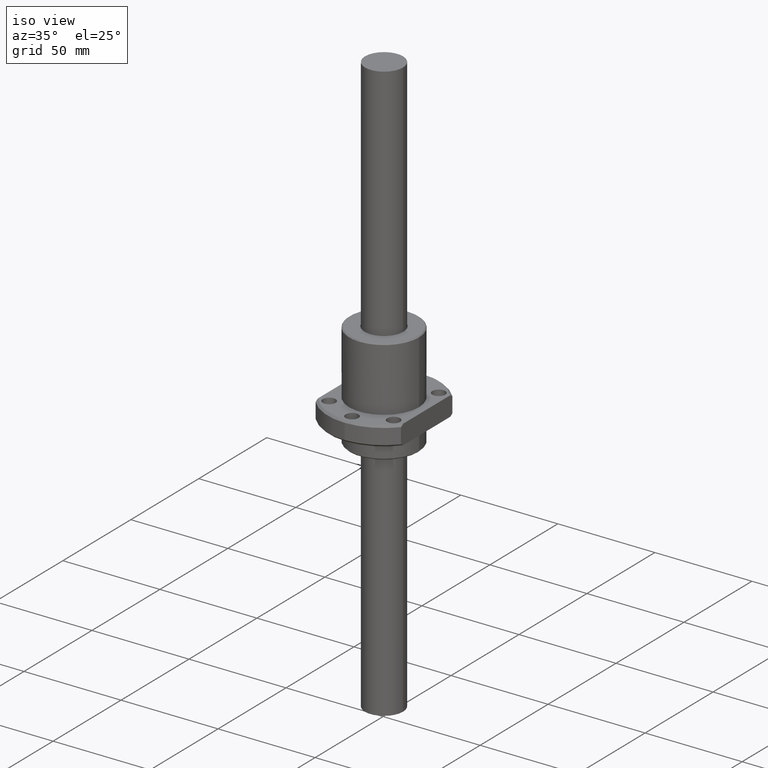
[diagram: clean part render]
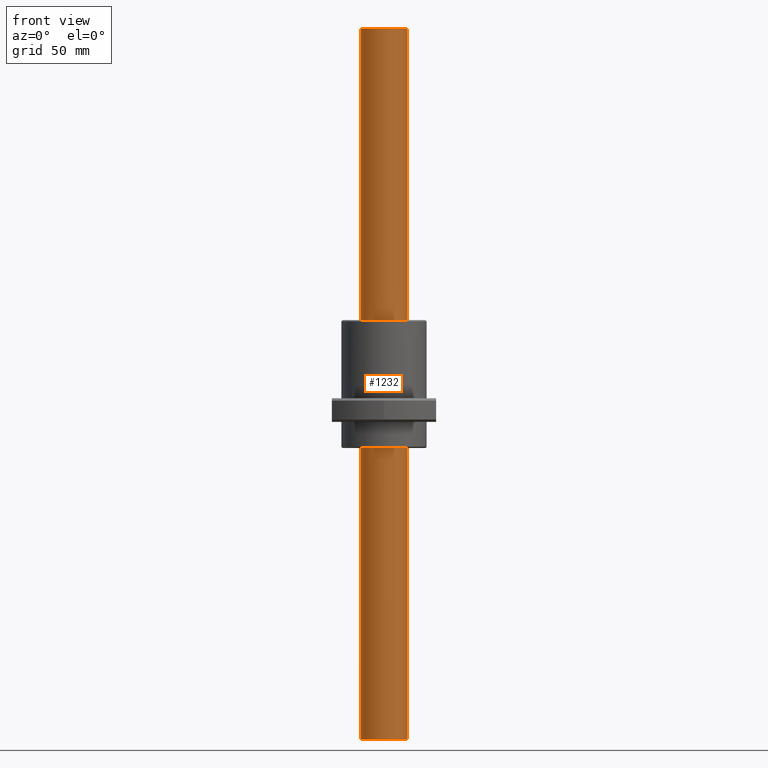
[diagram: tour spotlight — one face highlighted and labeled with its STEP entity id]
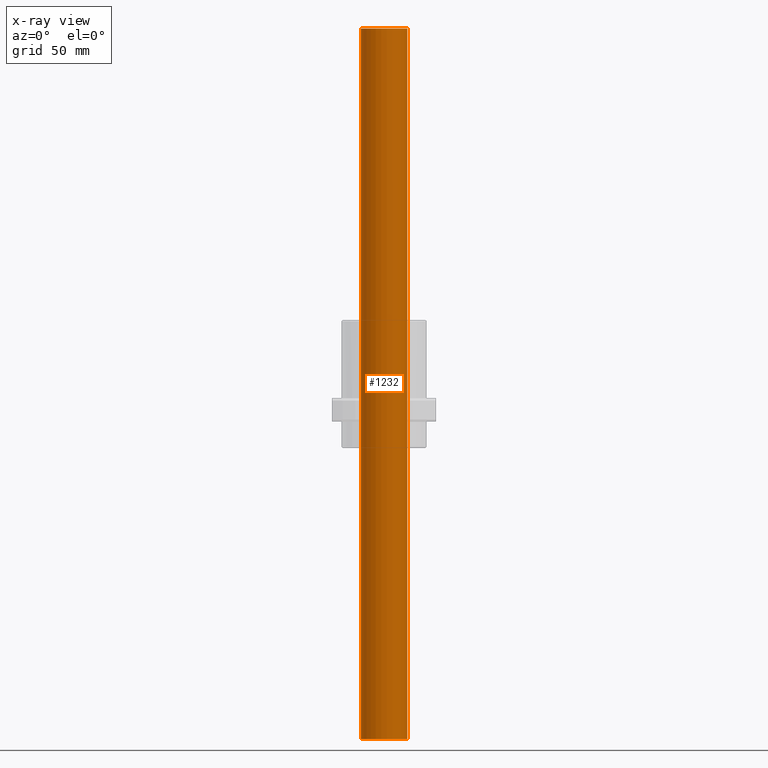
[diagram: x-ray of the same camera — body ghosted, this tour face saturated]
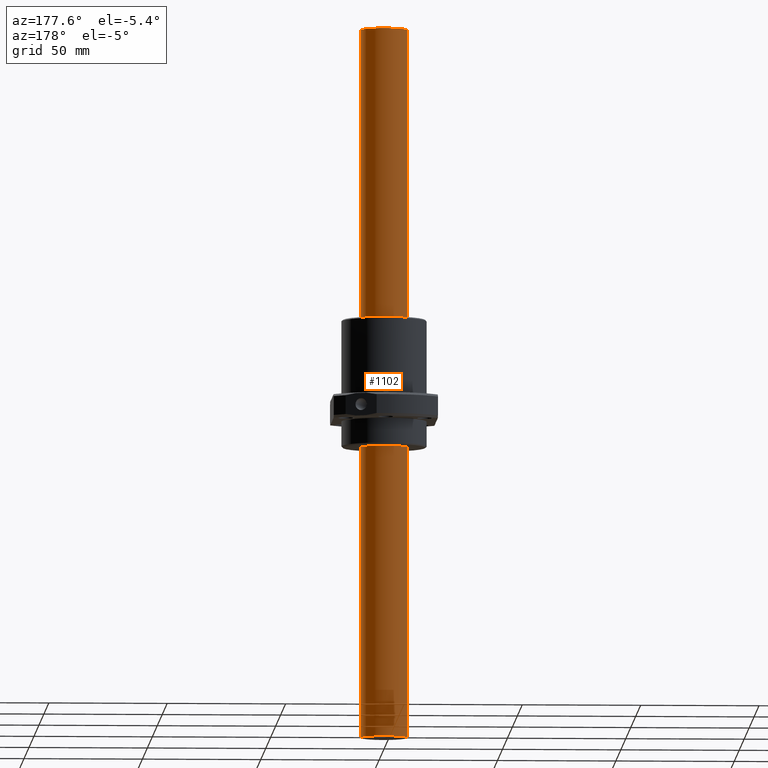
[diagram: tour spotlight — one face highlighted and labeled with its STEP entity id]
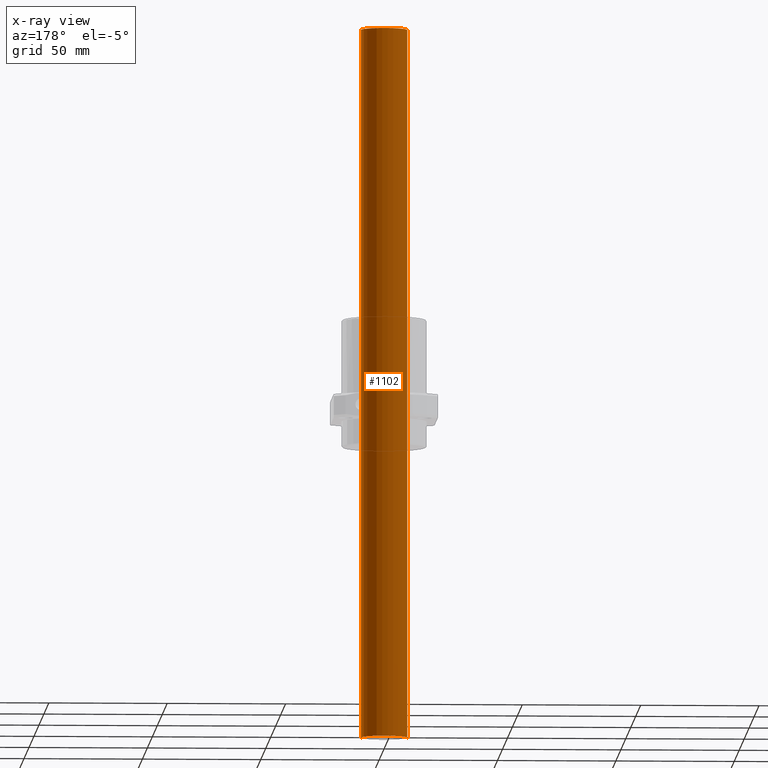
[diagram: x-ray of the same camera — body ghosted, this tour face saturated]
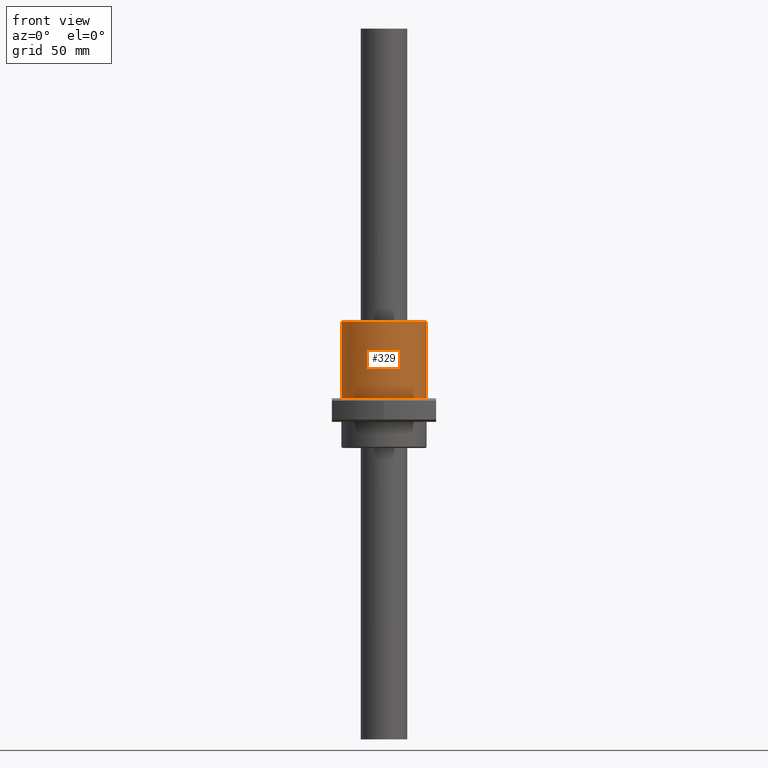
[diagram: tour spotlight — one face highlighted and labeled with its STEP entity id]
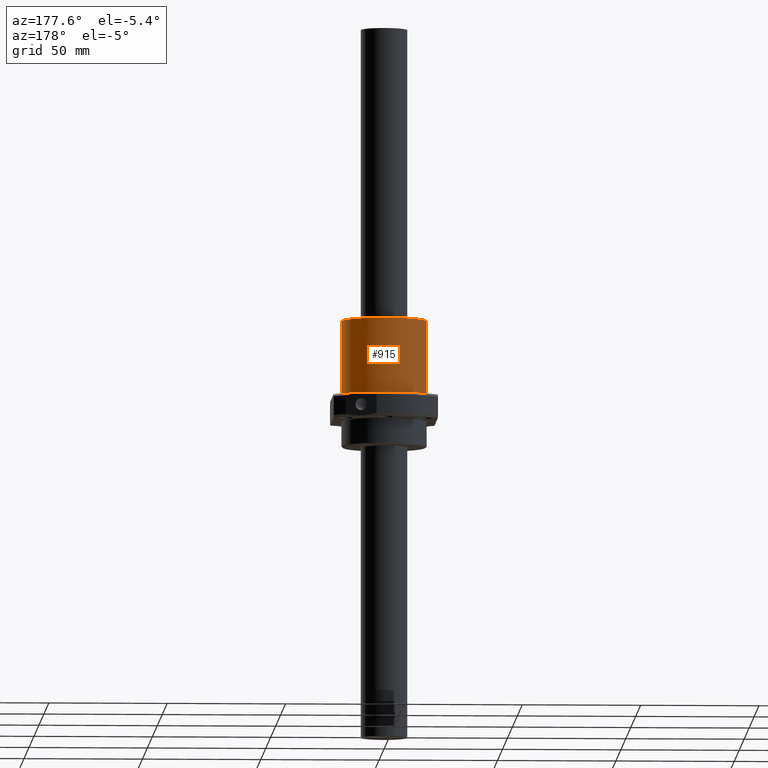
[diagram: tour spotlight — one face highlighted and labeled with its STEP entity id]
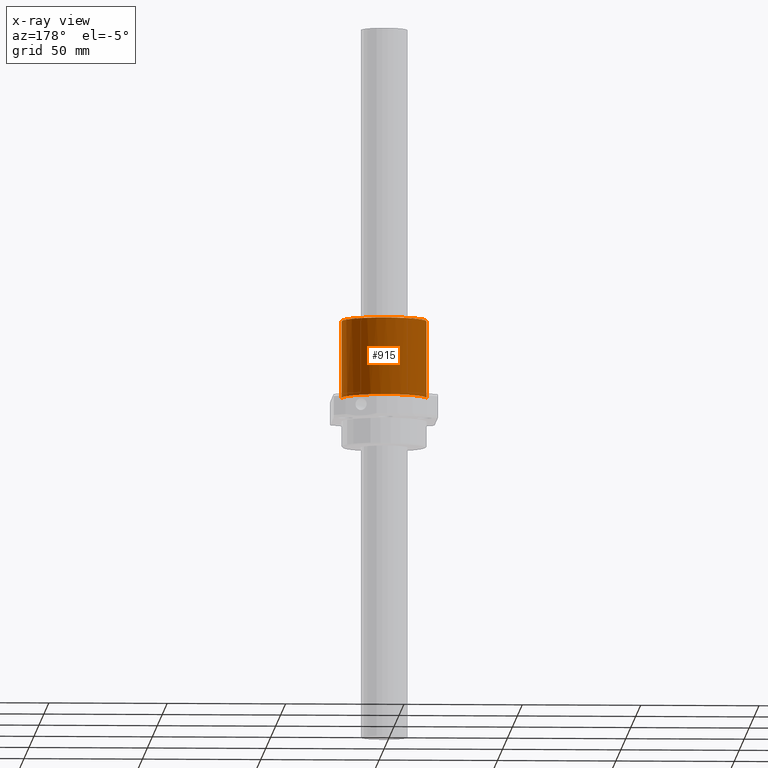
[diagram: x-ray of the same camera — body ghosted, this tour face saturated]
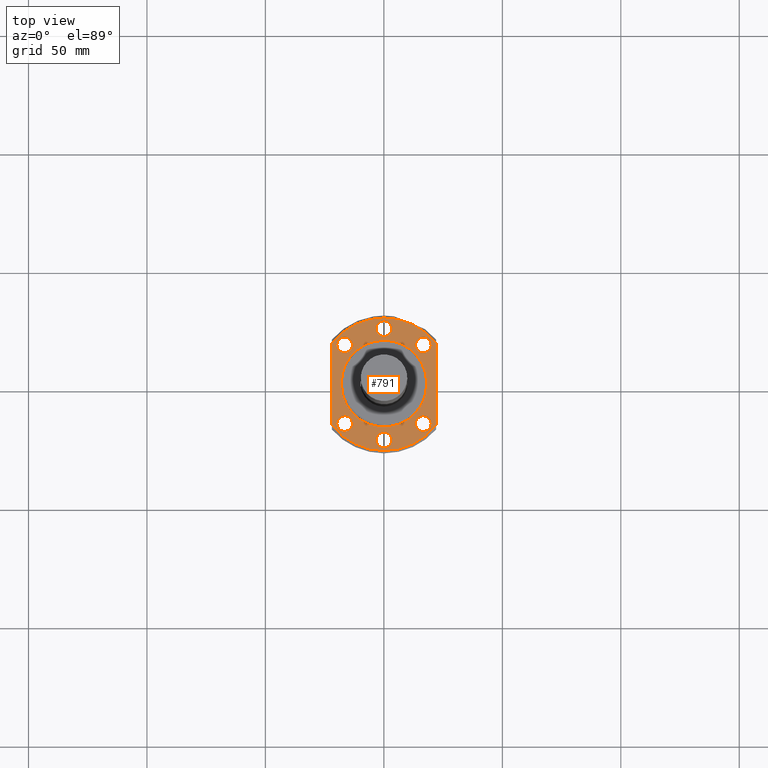
[diagram: tour spotlight — one face highlighted and labeled with its STEP entity id]
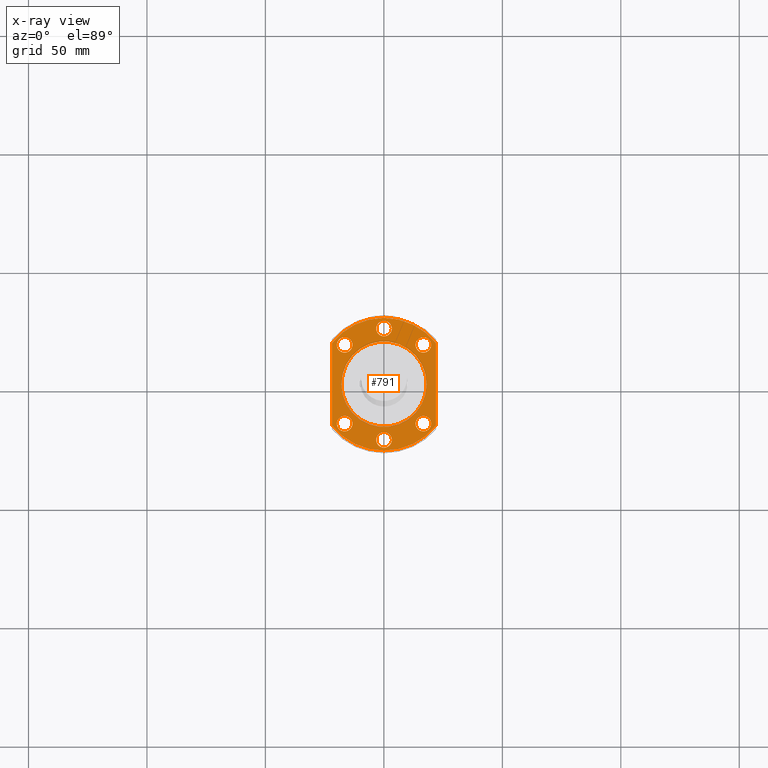
[diagram: x-ray of the same camera — body ghosted, this tour face saturated]
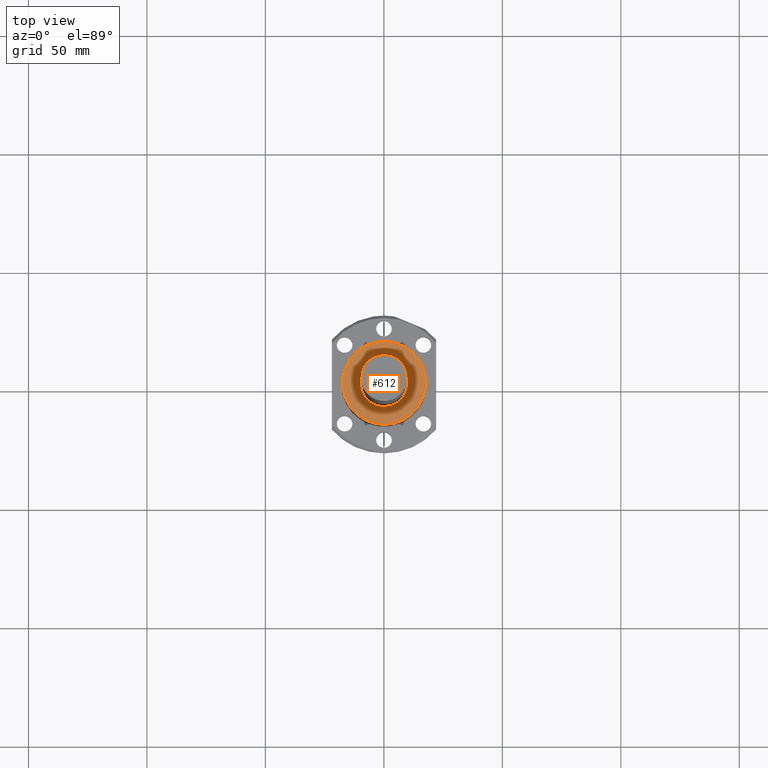
[diagram: tour spotlight — one face highlighted and labeled with its STEP entity id]
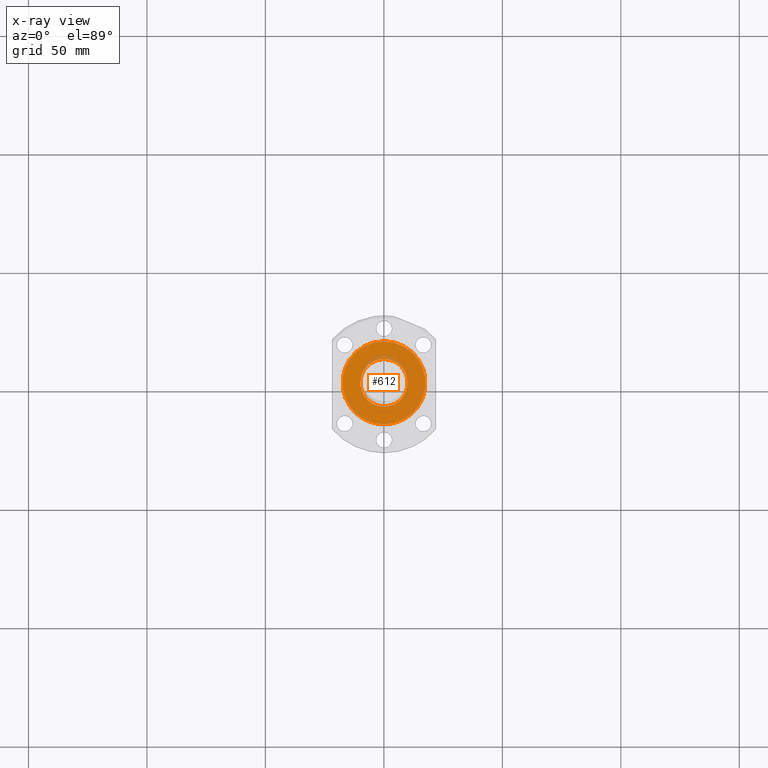
[diagram: x-ray of the same camera — body ghosted, this tour face saturated]
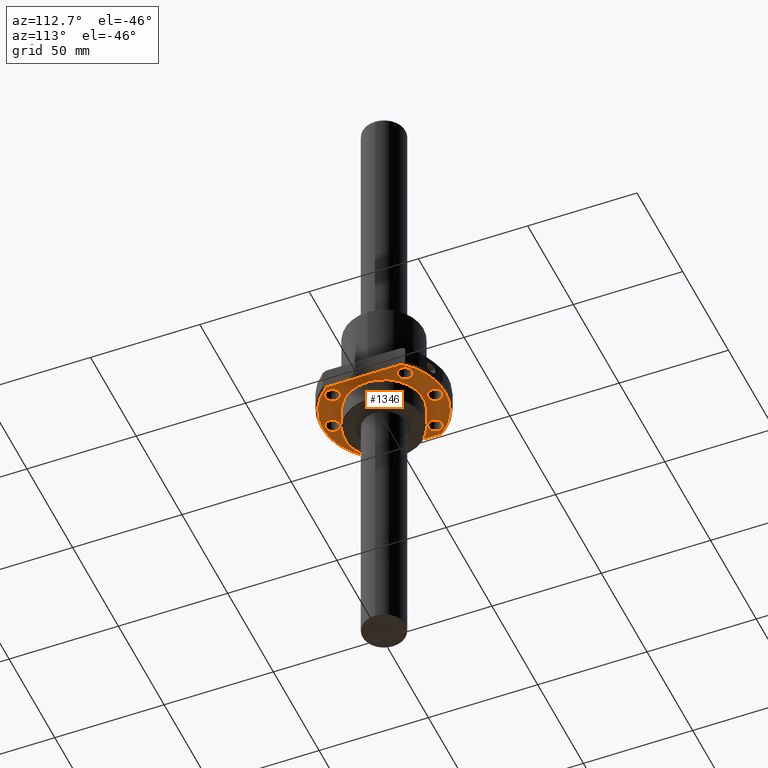
[diagram: tour spotlight — one face highlighted and labeled with its STEP entity id]
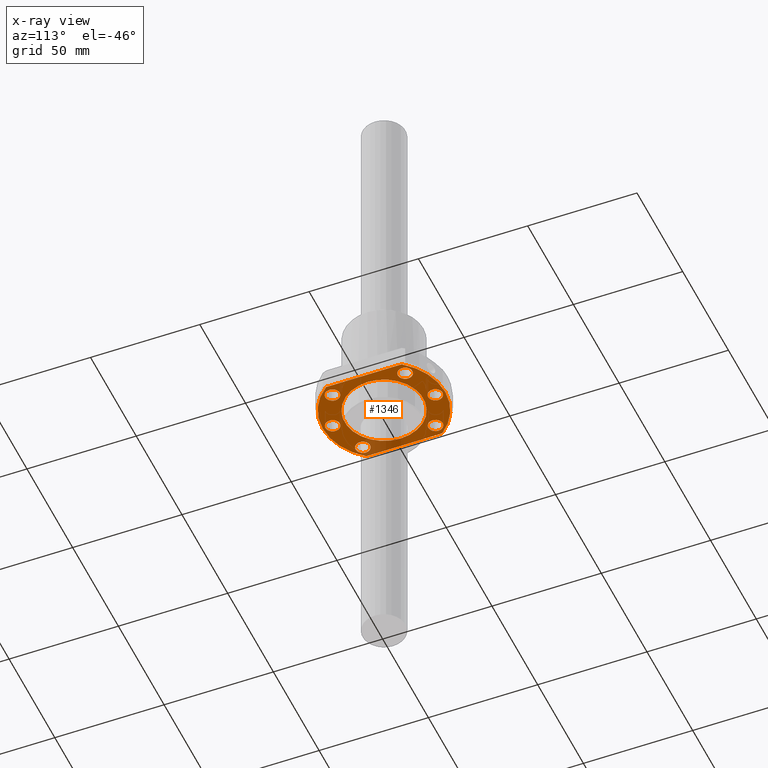
[diagram: x-ray of the same camera — body ghosted, this tour face saturated]
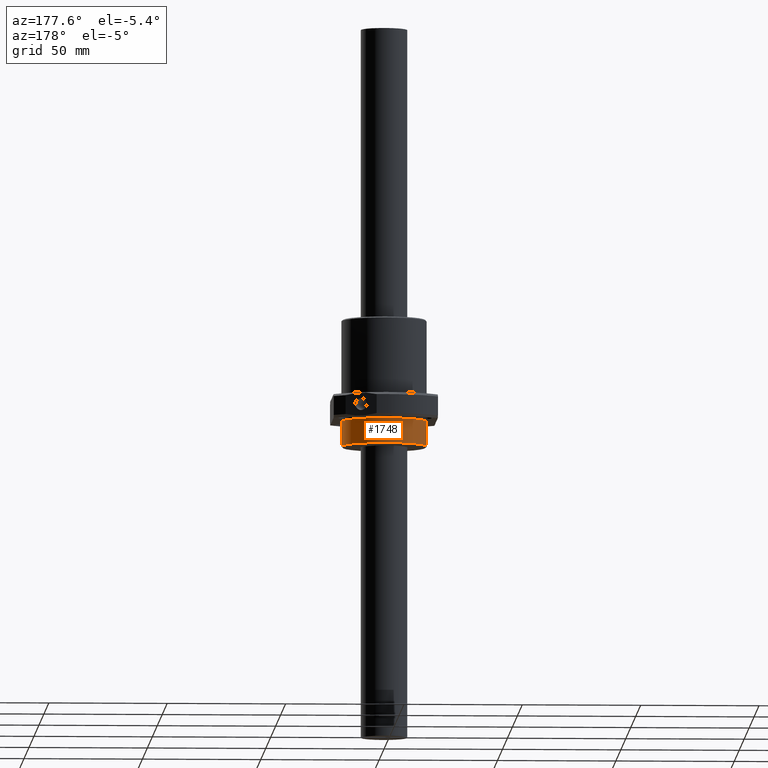
[diagram: tour spotlight — one face highlighted and labeled with its STEP entity id]
A machine part: a face-by-face anatomy tour. The part has 47 B-rep faces; the first image is the clean iso view, then the 8 largest visible faces are spotlighted one at a time (largest first), each with its STEP entity span.

Face 1 — front view, entity #1232. An x-ray twin of the same camera follows (body ghosted, this face saturated) — the face is partly hidden behind the body. In plain terms, the highlighted cylindrical surface (edge-blend (fillet) strip) has radius 9.8 mm, axis along (0, 0, 1).
Definition (entity closure, byte-faithful):
#48 = ORIENTED_EDGE ( 'NONE', *, *, #343, .T. ) ;
#79 = LINE ( 'NONE', #618, #513 ) ;
#80 = AXIS2_PLACEMENT_3D ( 'NONE', #1566, #1185, #995 ) ;
#114 = DIRECTION ( 'NONE',  ( 0.0000000000000000000, 0.0000000000000000000, 1.000000000000000000 ) ) ;
#170 = VERTEX_POINT ( 'NONE', #1179 ) ;
#230 = EDGE_LOOP ( 'NONE', ( #1608, #1578, #48, #1273 ) ) ;
#343 = EDGE_CURVE ( 'NONE', #614, #170, #875, .T. ) ;
#386 = CIRCLE ( 'NONE', #1257, 9.800000000000000700 ) ;
#446 = VECTOR ( 'NONE', #1267, 1000.000000000000000 ) ;
#472 = CARTESIAN_POINT ( 'NONE',  ( 0.0000000000000000000, 0.0000000000000000000, -300.0000000000000000 ) ) ;
#479 = EDGE_CURVE ( 'NONE', #1208, #962, #79, .T. ) ;
#513 = VECTOR ( 'NONE', #872, 1000.000000000000000 ) ;
#595 = CARTESIAN_POINT ( 'NONE',  ( -9.800000000000000700, 1.200153863164406300E-015, 0.0000000000000000000 ) ) ;
#614 = VERTEX_POINT ( 'NONE', #1475 ) ;
#618 = CARTESIAN_POINT ( 'NONE',  ( -9.800000000000000700, 1.200153863164406300E-015, -300.0000000000000000 ) ) ;
#677 = CIRCLE ( 'NONE', #80, 9.800000000000000700 ) ;
#872 = DIRECTION ( 'NONE',  ( 0.0000000000000000000, 0.0000000000000000000, 1.000000000000000000 ) ) ;
#875 = LINE ( 'NONE', #1063, #446 ) ;
#907 = CARTESIAN_POINT ( 'NONE',  ( -9.800000000000000700, 1.200153863164406300E-015, -300.0000000000000000 ) ) ;
#961 = EDGE_CURVE ( 'NONE', #614, #1208, #677, .T. ) ;
#962 = VERTEX_POINT ( 'NONE', #595 ) ;
#995 = DIRECTION ( 'NONE',  ( 1.000000000000000000, 0.0000000000000000000, 0.0000000000000000000 ) ) ;
#1063 = CARTESIAN_POINT ( 'NONE',  ( 9.800000000000000700, 0.0000000000000000000, -300.0000000000000000 ) ) ;
#1069 = EDGE_CURVE ( 'NONE', #962, #170, #386, .T. ) ;
#1092 = CARTESIAN_POINT ( 'NONE',  ( 0.0000000000000000000, 0.0000000000000000000, 0.0000000000000000000 ) ) ;
#1179 = CARTESIAN_POINT ( 'NONE',  ( 9.800000000000000700, 0.0000000000000000000, 0.0000000000000000000 ) ) ;
#1185 = DIRECTION ( 'NONE',  ( -0.0000000000000000000, -0.0000000000000000000, -1.000000000000000000 ) ) ;
#1194 = CYLINDRICAL_SURFACE ( 'NONE', #1479, 9.800000000000000700 ) ;
#1205 = DIRECTION ( 'NONE',  ( 1.000000000000000000, 0.0000000000000000000, 0.0000000000000000000 ) ) ;
#1208 = VERTEX_POINT ( 'NONE', #907 ) ;
#1232 = ADVANCED_FACE ( 'NONE', ( #1478 ), #1194, .T. ) ;
#1257 = AXIS2_PLACEMENT_3D ( 'NONE', #1092, #114, #1784 ) ;
#1267 = DIRECTION ( 'NONE',  ( 0.0000000000000000000, 0.0000000000000000000, 1.000000000000000000 ) ) ;
#1273 = ORIENTED_EDGE ( 'NONE', *, *, #1069, .F. ) ;
#1404 = DIRECTION ( 'NONE',  ( 0.0000000000000000000, 0.0000000000000000000, 1.000000000000000000 ) ) ;
#1475 = CARTESIAN_POINT ( 'NONE',  ( 9.800000000000000700, 0.0000000000000000000, -300.0000000000000000 ) ) ;
#1478 = FACE_OUTER_BOUND ( 'NONE', #230, .T. ) ;
#1479 = AXIS2_PLACEMENT_3D ( 'NONE', #472, #1404, #1205 ) ;
#1566 = CARTESIAN_POINT ( 'NONE',  ( 0.0000000000000000000, 0.0000000000000000000, -300.0000000000000000 ) ) ;
#1578 = ORIENTED_EDGE ( 'NONE', *, *, #961, .F. ) ;
#1608 = ORIENTED_EDGE ( 'NONE', *, *, #479, .F. ) ;
#1784 = DIRECTION ( 'NONE',  ( 1.000000000000000000, 0.0000000000000000000, 0.0000000000000000000 ) ) ;

Face 2 — auxiliary view, entity #1102. An x-ray twin of the same camera follows (body ghosted, this face saturated) — the face is partly hidden behind the body. In plain terms, the highlighted cylindrical surface (edge-blend (fillet) strip) has radius 9.8 mm, axis along (0, 0, 1).
Definition (entity closure, byte-faithful):
#68 = EDGE_CURVE ( 'NONE', #170, #962, #663, .T. ) ;
#79 = LINE ( 'NONE', #618, #513 ) ;
#113 = ORIENTED_EDGE ( 'NONE', *, *, #343, .F. ) ;
#170 = VERTEX_POINT ( 'NONE', #1179 ) ;
#191 = ORIENTED_EDGE ( 'NONE', *, *, #479, .T. ) ;
#241 = CIRCLE ( 'NONE', #1050, 9.800000000000000700 ) ;
#343 = EDGE_CURVE ( 'NONE', #614, #170, #875, .T. ) ;
#404 = FACE_OUTER_BOUND ( 'NONE', #1477, .T. ) ;
#446 = VECTOR ( 'NONE', #1267, 1000.000000000000000 ) ;
#479 = EDGE_CURVE ( 'NONE', #1208, #962, #79, .T. ) ;
#513 = VECTOR ( 'NONE', #872, 1000.000000000000000 ) ;
#552 = CARTESIAN_POINT ( 'NONE',  ( 0.0000000000000000000, 0.0000000000000000000, 0.0000000000000000000 ) ) ;
#595 = CARTESIAN_POINT ( 'NONE',  ( -9.800000000000000700, 1.200153863164406300E-015, 0.0000000000000000000 ) ) ;
#614 = VERTEX_POINT ( 'NONE', #1475 ) ;
#618 = CARTESIAN_POINT ( 'NONE',  ( -9.800000000000000700, 1.200153863164406300E-015, -300.0000000000000000 ) ) ;
#663 = CIRCLE ( 'NONE', #1297, 9.800000000000000700 ) ;
#735 = DIRECTION ( 'NONE',  ( 0.0000000000000000000, 0.0000000000000000000, 1.000000000000000000 ) ) ;
#872 = DIRECTION ( 'NONE',  ( 0.0000000000000000000, 0.0000000000000000000, 1.000000000000000000 ) ) ;
#875 = LINE ( 'NONE', #1063, #446 ) ;
#907 = CARTESIAN_POINT ( 'NONE',  ( -9.800000000000000700, 1.200153863164406300E-015, -300.0000000000000000 ) ) ;
#936 = DIRECTION ( 'NONE',  ( 1.000000000000000000, 0.0000000000000000000, 0.0000000000000000000 ) ) ;
#962 = VERTEX_POINT ( 'NONE', #595 ) ;
#1050 = AXIS2_PLACEMENT_3D ( 'NONE', #1470, #1294, #1090 ) ;
#1063 = CARTESIAN_POINT ( 'NONE',  ( 9.800000000000000700, 0.0000000000000000000, -300.0000000000000000 ) ) ;
#1082 = ORIENTED_EDGE ( 'NONE', *, *, #68, .F. ) ;
#1090 = DIRECTION ( 'NONE',  ( 1.000000000000000000, 0.0000000000000000000, 0.0000000000000000000 ) ) ;
#1102 = ADVANCED_FACE ( 'NONE', ( #404 ), #1441, .T. ) ;
#1155 = DIRECTION ( 'NONE',  ( 1.000000000000000000, 0.0000000000000000000, 0.0000000000000000000 ) ) ;
#1179 = CARTESIAN_POINT ( 'NONE',  ( 9.800000000000000700, 0.0000000000000000000, 0.0000000000000000000 ) ) ;
#1208 = VERTEX_POINT ( 'NONE', #907 ) ;
#1267 = DIRECTION ( 'NONE',  ( 0.0000000000000000000, 0.0000000000000000000, 1.000000000000000000 ) ) ;
#1294 = DIRECTION ( 'NONE',  ( -0.0000000000000000000, -0.0000000000000000000, -1.000000000000000000 ) ) ;
#1297 = AXIS2_PLACEMENT_3D ( 'NONE', #552, #735, #936 ) ;
#1302 = AXIS2_PLACEMENT_3D ( 'NONE', #1528, #1343, #1155 ) ;
#1343 = DIRECTION ( 'NONE',  ( 0.0000000000000000000, 0.0000000000000000000, 1.000000000000000000 ) ) ;
#1388 = EDGE_CURVE ( 'NONE', #1208, #614, #241, .T. ) ;
#1402 = ORIENTED_EDGE ( 'NONE', *, *, #1388, .F. ) ;
#1441 = CYLINDRICAL_SURFACE ( 'NONE', #1302, 9.800000000000000700 ) ;
#1470 = CARTESIAN_POINT ( 'NONE',  ( 0.0000000000000000000, 0.0000000000000000000, -300.0000000000000000 ) ) ;
#1475 = CARTESIAN_POINT ( 'NONE',  ( 9.800000000000000700, 0.0000000000000000000, -300.0000000000000000 ) ) ;
#1477 = EDGE_LOOP ( 'NONE', ( #1402, #191, #1082, #113 ) ) ;
#1528 = CARTESIAN_POINT ( 'NONE',  ( 0.0000000000000000000, 0.0000000000000000000, -300.0000000000000000 ) ) ;

Face 3 — front view, entity #329. In plain terms, the highlighted cylindrical surface (partial cylindrical patch) has radius 18 mm, axis along (0, 0, -1).
Definition (entity closure, byte-faithful):
#72 = VERTEX_POINT ( 'NONE', #1330 ) ;
#128 = ORIENTED_EDGE ( 'NONE', *, *, #1520, .F. ) ;
#163 = VECTOR ( 'NONE', #723, 1000.000000000000000 ) ;
#190 = CARTESIAN_POINT ( 'NONE',  ( 18.00000000000000400, 0.0000000000000000000, -53.50000000000000000 ) ) ;
#224 = VERTEX_POINT ( 'NONE', #580 ) ;
#232 = CIRCLE ( 'NONE', #1326, 18.00000000000000400 ) ;
#233 = EDGE_LOOP ( 'NONE', ( #862, #1390, #128, #1171, #1353 ) ) ;
#311 = CARTESIAN_POINT ( 'NONE',  ( 0.0000000000000000000, -18.00000000000001100, -53.50000000000000000 ) ) ;
#329 = ADVANCED_FACE ( 'NONE', ( #1125 ), #991, .T. ) ;
#351 = EDGE_CURVE ( 'NONE', #1067, #1600, #1401, .T. ) ;
#367 = CARTESIAN_POINT ( 'NONE',  ( 0.0000000000000000000, 0.0000000000000000000, -53.50000000000000000 ) ) ;
#394 = LINE ( 'NONE', #190, #1736 ) ;
#475 = VERTEX_POINT ( 'NONE', #1017 ) ;
#515 = AXIS2_PLACEMENT_3D ( 'NONE', #367, #1838, #1659 ) ;
#524 = CARTESIAN_POINT ( 'NONE',  ( 0.0000000000000000000, 0.0000000000000000000, -20.99999999999999600 ) ) ;
#580 = CARTESIAN_POINT ( 'NONE',  ( 18.00000000000000400, 0.0000000000000000000, -53.50000000000000000 ) ) ;
#637 = AXIS2_PLACEMENT_3D ( 'NONE', #1453, #1626, #1803 ) ;
#651 = EDGE_CURVE ( 'NONE', #72, #475, #232, .T. ) ;
#670 = DIRECTION ( 'NONE',  ( 1.000000000000000000, 0.0000000000000000000, 0.0000000000000000000 ) ) ;
#723 = DIRECTION ( 'NONE',  ( 0.0000000000000000000, -0.0000000000000000000, 1.000000000000000000 ) ) ;
#758 = AXIS2_PLACEMENT_3D ( 'NONE', #825, #1022, #1212 ) ;
#765 = EDGE_CURVE ( 'NONE', #1600, #475, #1121, .T. ) ;
#825 = CARTESIAN_POINT ( 'NONE',  ( 0.0000000000000000000, 0.0000000000000000000, -53.50000000000000000 ) ) ;
#862 = ORIENTED_EDGE ( 'NONE', *, *, #765, .F. ) ;
#873 = DIRECTION ( 'NONE',  ( -0.0000000000000000000, 0.0000000000000000000, -1.000000000000000000 ) ) ;
#922 = CARTESIAN_POINT ( 'NONE',  ( -18.00000000000000400, 2.204364238465235800E-015, -53.50000000000000000 ) ) ;
#991 = CYLINDRICAL_SURFACE ( 'NONE', #758, 18.00000000000000400 ) ;
#1017 = CARTESIAN_POINT ( 'NONE',  ( -18.00000000000000400, 2.204364238465235800E-015, -20.99999999999999600 ) ) ;
#1022 = DIRECTION ( 'NONE',  ( 0.0000000000000000000, -0.0000000000000000000, 1.000000000000000000 ) ) ;
#1067 = VERTEX_POINT ( 'NONE', #311 ) ;
#1121 = LINE ( 'NONE', #922, #163 ) ;
#1125 = FACE_OUTER_BOUND ( 'NONE', #233, .T. ) ;
#1171 = ORIENTED_EDGE ( 'NONE', *, *, #1765, .T. ) ;
#1212 = DIRECTION ( 'NONE',  ( 1.000000000000000000, 0.0000000000000000000, 0.0000000000000000000 ) ) ;
#1326 = AXIS2_PLACEMENT_3D ( 'NONE', #524, #873, #670 ) ;
#1330 = CARTESIAN_POINT ( 'NONE',  ( 18.00000000000000400, 0.0000000000000000000, -20.99999999999999600 ) ) ;
#1353 = ORIENTED_EDGE ( 'NONE', *, *, #651, .T. ) ;
#1390 = ORIENTED_EDGE ( 'NONE', *, *, #351, .F. ) ;
#1399 = CARTESIAN_POINT ( 'NONE',  ( -18.00000000000000400, 2.204364238465235800E-015, -53.50000000000000000 ) ) ;
#1401 = CIRCLE ( 'NONE', #637, 18.00000000000000400 ) ;
#1453 = CARTESIAN_POINT ( 'NONE',  ( 0.0000000000000000000, 0.0000000000000000000, -53.50000000000000000 ) ) ;
#1520 = EDGE_CURVE ( 'NONE', #224, #1067, #1684, .T. ) ;
#1600 = VERTEX_POINT ( 'NONE', #1399 ) ;
#1626 = DIRECTION ( 'NONE',  ( -0.0000000000000000000, -0.0000000000000000000, -1.000000000000000000 ) ) ;
#1659 = DIRECTION ( 'NONE',  ( 1.000000000000000000, 0.0000000000000000000, 0.0000000000000000000 ) ) ;
#1684 = CIRCLE ( 'NONE', #515, 18.00000000000000400 ) ;
#1736 = VECTOR ( 'NONE', #1856, 1000.000000000000000 ) ;
#1765 = EDGE_CURVE ( 'NONE', #224, #72, #394, .T. ) ;
#1803 = DIRECTION ( 'NONE',  ( 1.000000000000000000, 0.0000000000000000000, 0.0000000000000000000 ) ) ;
#1838 = DIRECTION ( 'NONE',  ( -0.0000000000000000000, -0.0000000000000000000, -1.000000000000000000 ) ) ;
#1856 = DIRECTION ( 'NONE',  ( 0.0000000000000000000, -0.0000000000000000000, 1.000000000000000000 ) ) ;

Face 4 — auxiliary view, entity #915. An x-ray twin of the same camera follows (body ghosted, this face saturated) — the face is partly hidden behind the body. In plain terms, the highlighted cylindrical surface (partial cylindrical patch) has radius 18 mm, axis along (0, 0, -1).
Definition (entity closure, byte-faithful):
#15 = CYLINDRICAL_SURFACE ( 'NONE', #1709, 18.00000000000000400 ) ;
#72 = VERTEX_POINT ( 'NONE', #1330 ) ;
#163 = VECTOR ( 'NONE', #723, 1000.000000000000000 ) ;
#172 = EDGE_LOOP ( 'NONE', ( #1629, #659, #347, #334, #570 ) ) ;
#190 = CARTESIAN_POINT ( 'NONE',  ( 18.00000000000000400, 0.0000000000000000000, -53.50000000000000000 ) ) ;
#222 = EDGE_CURVE ( 'NONE', #475, #72, #1794, .T. ) ;
#224 = VERTEX_POINT ( 'NONE', #580 ) ;
#299 = AXIS2_PLACEMENT_3D ( 'NONE', #717, #1489, #1671 ) ;
#334 = ORIENTED_EDGE ( 'NONE', *, *, #1765, .F. ) ;
#347 = ORIENTED_EDGE ( 'NONE', *, *, #222, .T. ) ;
#361 = EDGE_CURVE ( 'NONE', #1338, #224, #525, .T. ) ;
#378 = CIRCLE ( 'NONE', #1264, 18.00000000000000400 ) ;
#394 = LINE ( 'NONE', #190, #1736 ) ;
#475 = VERTEX_POINT ( 'NONE', #1017 ) ;
#510 = EDGE_CURVE ( 'NONE', #1600, #1338, #378, .T. ) ;
#525 = CIRCLE ( 'NONE', #299, 18.00000000000000400 ) ;
#570 = ORIENTED_EDGE ( 'NONE', *, *, #361, .F. ) ;
#580 = CARTESIAN_POINT ( 'NONE',  ( 18.00000000000000400, 0.0000000000000000000, -53.50000000000000000 ) ) ;
#659 = ORIENTED_EDGE ( 'NONE', *, *, #765, .T. ) ;
#717 = CARTESIAN_POINT ( 'NONE',  ( 0.0000000000000000000, 0.0000000000000000000, -53.50000000000000000 ) ) ;
#723 = DIRECTION ( 'NONE',  ( 0.0000000000000000000, -0.0000000000000000000, 1.000000000000000000 ) ) ;
#765 = EDGE_CURVE ( 'NONE', #1600, #475, #1121, .T. ) ;
#915 = ADVANCED_FACE ( 'NONE', ( #1662 ), #15, .T. ) ;
#922 = CARTESIAN_POINT ( 'NONE',  ( -18.00000000000000400, 2.204364238465235800E-015, -53.50000000000000000 ) ) ;
#1017 = CARTESIAN_POINT ( 'NONE',  ( -18.00000000000000400, 2.204364238465235800E-015, -20.99999999999999600 ) ) ;
#1121 = LINE ( 'NONE', #922, #163 ) ;
#1126 = CARTESIAN_POINT ( 'NONE',  ( 0.0000000000000000000, 0.0000000000000000000, -20.99999999999999600 ) ) ;
#1141 = AXIS2_PLACEMENT_3D ( 'NONE', #1126, #1320, #1500 ) ;
#1186 = DIRECTION ( 'NONE',  ( 1.000000000000000000, 0.0000000000000000000, 0.0000000000000000000 ) ) ;
#1264 = AXIS2_PLACEMENT_3D ( 'NONE', #1567, #1376, #1186 ) ;
#1320 = DIRECTION ( 'NONE',  ( -0.0000000000000000000, 0.0000000000000000000, -1.000000000000000000 ) ) ;
#1330 = CARTESIAN_POINT ( 'NONE',  ( 18.00000000000000400, 0.0000000000000000000, -20.99999999999999600 ) ) ;
#1338 = VERTEX_POINT ( 'NONE', #1639 ) ;
#1376 = DIRECTION ( 'NONE',  ( -0.0000000000000000000, -0.0000000000000000000, -1.000000000000000000 ) ) ;
#1399 = CARTESIAN_POINT ( 'NONE',  ( -18.00000000000000400, 2.204364238465235800E-015, -53.50000000000000000 ) ) ;
#1489 = DIRECTION ( 'NONE',  ( -0.0000000000000000000, -0.0000000000000000000, -1.000000000000000000 ) ) ;
#1500 = DIRECTION ( 'NONE',  ( 1.000000000000000000, 0.0000000000000000000, 0.0000000000000000000 ) ) ;
#1508 = DIRECTION ( 'NONE',  ( 1.000000000000000000, 0.0000000000000000000, 0.0000000000000000000 ) ) ;
#1567 = CARTESIAN_POINT ( 'NONE',  ( 0.0000000000000000000, 0.0000000000000000000, -53.50000000000000000 ) ) ;
#1600 = VERTEX_POINT ( 'NONE', #1399 ) ;
#1629 = ORIENTED_EDGE ( 'NONE', *, *, #510, .F. ) ;
#1639 = CARTESIAN_POINT ( 'NONE',  ( 2.204364238465235000E-015, 17.99999999999999600, -53.50000000000000000 ) ) ;
#1662 = FACE_OUTER_BOUND ( 'NONE', #172, .T. ) ;
#1671 = DIRECTION ( 'NONE',  ( 1.000000000000000000, 0.0000000000000000000, 0.0000000000000000000 ) ) ;
#1690 = DIRECTION ( 'NONE',  ( 0.0000000000000000000, -0.0000000000000000000, 1.000000000000000000 ) ) ;
#1709 = AXIS2_PLACEMENT_3D ( 'NONE', #1861, #1690, #1508 ) ;
#1736 = VECTOR ( 'NONE', #1856, 1000.000000000000000 ) ;
#1765 = EDGE_CURVE ( 'NONE', #224, #72, #394, .T. ) ;
#1794 = CIRCLE ( 'NONE', #1141, 18.00000000000000400 ) ;
#1856 = DIRECTION ( 'NONE',  ( 0.0000000000000000000, -0.0000000000000000000, 1.000000000000000000 ) ) ;
#1861 = CARTESIAN_POINT ( 'NONE',  ( 0.0000000000000000000, 0.0000000000000000000, -53.50000000000000000 ) ) ;

Face 5 — top view, entity #791. An x-ray twin of the same camera follows (body ghosted, this face saturated) — the face is partly hidden behind the body. In plain terms, the highlighted planar face has unit normal (0, 0, -1).
Definition (entity closure, byte-faithful):
#8 = FACE_BOUND ( 'NONE', #1216, .T. ) ;
#9 = EDGE_LOOP ( 'NONE', ( #1133, #242 ) ) ;
#29 = VERTEX_POINT ( 'NONE', #54 ) ;
#34 = FACE_BOUND ( 'NONE', #1150, .T. ) ;
#38 = CARTESIAN_POINT ( 'NONE',  ( 0.0000000000000000000, -23.50935125600000200, -20.99999999999999600 ) ) ;
#44 = CARTESIAN_POINT ( 'NONE',  ( -3.299999952000000300, 23.49064874400000100, -20.99999999999999600 ) ) ;
#47 = EDGE_CURVE ( 'NONE', #1841, #1631, #807, .T. ) ;
#54 = CARTESIAN_POINT ( 'NONE',  ( 3.299999952000000300, 23.49064874400000100, -20.99999999999999600 ) ) ;
#57 = DIRECTION ( 'NONE',  ( 1.000000000000000000, 0.0000000000000000000, 0.0000000000000000000 ) ) ;
#71 = CARTESIAN_POINT ( 'NONE',  ( -19.91499972300000800, -16.62435102700000700, -20.99999999999999600 ) ) ;
#72 = VERTEX_POINT ( 'NONE', #1330 ) ;
#84 = CIRCLE ( 'NONE', #1615, 28.00000000000009600 ) ;
#92 = PLANE ( 'NONE',  #1134 ) ;
#94 = FACE_BOUND ( 'NONE', #1450, .T. ) ;
#109 = CARTESIAN_POINT ( 'NONE',  ( 0.0000000000000000000, 0.0000000000000000000, -20.99999999999990800 ) ) ;
#119 = AXIS2_PLACEMENT_3D ( 'NONE', #952, #748, #564 ) ;
#123 = AXIS2_PLACEMENT_3D ( 'NONE', #996, #596, #416 ) ;
#141 = FACE_BOUND ( 'NONE', #1749, .T. ) ;
#165 = CARTESIAN_POINT ( 'NONE',  ( 19.91700935800000100, 16.60765810200000600, -20.99999999999999600 ) ) ;
#167 = CARTESIAN_POINT ( 'NONE',  ( 19.91499972300000500, -16.62435102700000700, -20.99999999999999600 ) ) ;
#195 = EDGE_CURVE ( 'NONE', #29, #1806, #373, .T. ) ;
#222 = EDGE_CURVE ( 'NONE', #475, #72, #1794, .T. ) ;
#226 = CIRCLE ( 'NONE', #935, 3.299999952000003000 ) ;
#228 = DIRECTION ( 'NONE',  ( 0.0000000000000000000, 1.000000000000000000, 0.0000000000000000000 ) ) ;
#232 = CIRCLE ( 'NONE', #1326, 18.00000000000000400 ) ;
#238 = CARTESIAN_POINT ( 'NONE',  ( -16.61499977100000400, -16.62435102700000700, -20.99999999999999600 ) ) ;
#242 = ORIENTED_EDGE ( 'NONE', *, *, #1202, .F. ) ;
#245 = FACE_BOUND ( 'NONE', #1366, .T. ) ;
#255 = CARTESIAN_POINT ( 'NONE',  ( -22.00000000000000000, 17.32050807568884900, -20.99999999999995700 ) ) ;
#267 = AXIS2_PLACEMENT_3D ( 'NONE', #1033, #845, #639 ) ;
#269 = DIRECTION ( 'NONE',  ( -0.0000000000000000000, -0.0000000000000000000, -1.000000000000000000 ) ) ;
#270 = EDGE_LOOP ( 'NONE', ( #425, #1676 ) ) ;
#284 = VERTEX_POINT ( 'NONE', #1549 ) ;
#289 = CARTESIAN_POINT ( 'NONE',  ( 3.299999952000000300, -23.50935125600000200, -20.99999999999999600 ) ) ;
#290 = DIRECTION ( 'NONE',  ( 1.000000000000000000, 0.0000000000000000000, 0.0000000000000000000 ) ) ;
#298 = DIRECTION ( 'NONE',  ( -0.0000000000000000000, -0.0000000000000000000, -1.000000000000000000 ) ) ;
#306 = DIRECTION ( 'NONE',  ( -0.0000000000000000000, -0.0000000000000000000, -1.000000000000000000 ) ) ;
#315 = AXIS2_PLACEMENT_3D ( 'NONE', #635, #298, #491 ) ;
#322 = EDGE_CURVE ( 'NONE', #1582, #284, #226, .T. ) ;
#336 = VERTEX_POINT ( 'NONE', #289 ) ;
#342 = FACE_BOUND ( 'NONE', #270, .T. ) ;
#346 = CARTESIAN_POINT ( 'NONE',  ( -3.299999952000000300, -23.50935125600000200, -20.99999999999999600 ) ) ;
#369 = VERTEX_POINT ( 'NONE', #963 ) ;
#373 = CIRCLE ( 'NONE', #315, 3.299999952000000300 ) ;
#391 = CIRCLE ( 'NONE', #267, 3.299999952000003000 ) ;
#397 = FACE_OUTER_BOUND ( 'NONE', #970, .T. ) ;
#398 = VERTEX_POINT ( 'NONE', #1445 ) ;
#416 = DIRECTION ( 'NONE',  ( 1.000000000000000000, 0.0000000000000000000, 0.0000000000000000000 ) ) ;
#424 = AXIS2_PLACEMENT_3D ( 'NONE', #458, #269, #57 ) ;
#425 = ORIENTED_EDGE ( 'NONE', *, *, #1515, .F. ) ;
#430 = CARTESIAN_POINT ( 'NONE',  ( 22.00000000000000000, -0.004675628000003553800, -21.00000000000000000 ) ) ;
#434 = ORIENTED_EDGE ( 'NONE', *, *, #47, .T. ) ;
#437 = DIRECTION ( 'NONE',  ( -0.0000000000000000000, 0.0000000000000000000, -1.000000000000000000 ) ) ;
#458 = CARTESIAN_POINT ( 'NONE',  ( 0.0000000000000000000, -23.50935125600000200, -20.99999999999999600 ) ) ;
#475 = VERTEX_POINT ( 'NONE', #1017 ) ;
#481 = DIRECTION ( 'NONE',  ( -0.0000000000000000000, 0.0000000000000000000, -1.000000000000000000 ) ) ;
#491 = DIRECTION ( 'NONE',  ( 1.000000000000000000, 0.0000000000000000000, 0.0000000000000000000 ) ) ;
#501 = DIRECTION ( 'NONE',  ( 1.000000000000000000, 0.0000000000000000000, 0.0000000000000000000 ) ) ;
#505 = ORIENTED_EDGE ( 'NONE', *, *, #1490, .F. ) ;
#518 = EDGE_CURVE ( 'NONE', #1527, #398, #967, .T. ) ;
#524 = CARTESIAN_POINT ( 'NONE',  ( 0.0000000000000000000, 0.0000000000000000000, -20.99999999999999600 ) ) ;
#539 = CIRCLE ( 'NONE', #424, 3.299999952000000300 ) ;
#545 = ORIENTED_EDGE ( 'NONE', *, *, #1624, .F. ) ;
#557 = FACE_BOUND ( 'NONE', #9, .T. ) ;
#564 = DIRECTION ( 'NONE',  ( 1.000000000000000000, 0.0000000000000000000, 0.0000000000000000000 ) ) ;
#582 = ORIENTED_EDGE ( 'NONE', *, *, #809, .F. ) ;
#596 = DIRECTION ( 'NONE',  ( -0.0000000000000000000, 0.0000000000000000000, -1.000000000000000000 ) ) ;
#613 = LINE ( 'NONE', #430, #644 ) ;
#623 = ORIENTED_EDGE ( 'NONE', *, *, #195, .F. ) ;
#625 = DIRECTION ( 'NONE',  ( 1.000000000000000000, 0.0000000000000000000, 0.0000000000000000000 ) ) ;
#626 = DIRECTION ( 'NONE',  ( 0.0000000000000000000, -1.000000000000000000, 0.0000000000000000000 ) ) ;
#635 = CARTESIAN_POINT ( 'NONE',  ( 0.0000000000000000000, 23.49064874400000100, -20.99999999999999600 ) ) ;
#639 = DIRECTION ( 'NONE',  ( 1.000000000000000000, 0.0000000000000000000, 0.0000000000000000000 ) ) ;
#644 = VECTOR ( 'NONE', #228, 1000.000000000000000 ) ;
#651 = EDGE_CURVE ( 'NONE', #72, #475, #232, .T. ) ;
#666 = ORIENTED_EDGE ( 'NONE', *, *, #518, .F. ) ;
#670 = DIRECTION ( 'NONE',  ( 1.000000000000000000, 0.0000000000000000000, 0.0000000000000000000 ) ) ;
#678 = CARTESIAN_POINT ( 'NONE',  ( -16.61499977100000400, -16.62435102700000700, -20.99999999999999600 ) ) ;
#748 = DIRECTION ( 'NONE',  ( -0.0000000000000000000, 0.0000000000000000000, -1.000000000000000000 ) ) ;
#766 = ORIENTED_EDGE ( 'NONE', *, *, #1358, .F. ) ;
#780 = AXIS2_PLACEMENT_3D ( 'NONE', #38, #1725, #1557 ) ;
#787 = DIRECTION ( 'NONE',  ( 1.000000000000000000, 0.0000000000000000000, 0.0000000000000000000 ) ) ;
#791 = ADVANCED_FACE ( 'NONE', ( #8, #557, #94, #141, #34, #245, #342, #397 ), #92, .F. ) ;
#807 = CIRCLE ( 'NONE', #1337, 28.00000000000009600 ) ;
#809 = EDGE_CURVE ( 'NONE', #336, #1271, #1407, .T. ) ;
#815 = EDGE_CURVE ( 'NONE', #1686, #954, #84, .T. ) ;
#828 = CARTESIAN_POINT ( 'NONE',  ( -22.00000000000000000, -0.004675628000003553800, -21.00000000000000000 ) ) ;
#845 = DIRECTION ( 'NONE',  ( -0.0000000000000000000, 0.0000000000000000000, -1.000000000000000000 ) ) ;
#873 = DIRECTION ( 'NONE',  ( -0.0000000000000000000, 0.0000000000000000000, -1.000000000000000000 ) ) ;
#904 = CARTESIAN_POINT ( 'NONE',  ( -19.91499972300000800, 16.60564851499999900, -20.99999999999999600 ) ) ;
#935 = AXIS2_PLACEMENT_3D ( 'NONE', #238, #437, #625 ) ;
#952 = CARTESIAN_POINT ( 'NONE',  ( 16.61499977100000400, -16.62435102700000700, -20.99999999999999600 ) ) ;
#954 = VERTEX_POINT ( 'NONE', #1374 ) ;
#963 = CARTESIAN_POINT ( 'NONE',  ( 13.31700935800000500, 16.60765810200000600, -20.99999999999999600 ) ) ;
#967 = CIRCLE ( 'NONE', #123, 3.299999952000003000 ) ;
#970 = EDGE_LOOP ( 'NONE', ( #1541, #1048, #434, #545 ) ) ;
#986 = DIRECTION ( 'NONE',  ( 1.000000000000000000, 0.0000000000000000000, 0.0000000000000000000 ) ) ;
#993 = DIRECTION ( 'NONE',  ( -0.0000000000000000000, -0.0000000000000000000, -1.000000000000000000 ) ) ;
#996 = CARTESIAN_POINT ( 'NONE',  ( -16.61499977100000400, 16.60564851499999900, -20.99999999999999600 ) ) ;
#1017 = CARTESIAN_POINT ( 'NONE',  ( -18.00000000000000400, 2.204364238465235800E-015, -20.99999999999999600 ) ) ;
#1024 = CARTESIAN_POINT ( 'NONE',  ( -22.00000000000000000, -17.32050807568884900, -20.99999999999995700 ) ) ;
#1033 = CARTESIAN_POINT ( 'NONE',  ( -16.61499977100000400, 16.60564851499999900, -20.99999999999999600 ) ) ;
#1048 = ORIENTED_EDGE ( 'NONE', *, *, #1744, .F. ) ;
#1061 = EDGE_CURVE ( 'NONE', #1517, #369, #1805, .T. ) ;
#1097 = ORIENTED_EDGE ( 'NONE', *, *, #1664, .F. ) ;
#1105 = ORIENTED_EDGE ( 'NONE', *, *, #222, .F. ) ;
#1126 = CARTESIAN_POINT ( 'NONE',  ( 0.0000000000000000000, 0.0000000000000000000, -20.99999999999999600 ) ) ;
#1133 = ORIENTED_EDGE ( 'NONE', *, *, #1061, .F. ) ;
#1134 = AXIS2_PLACEMENT_3D ( 'NONE', #1764, #1593, #1417 ) ;
#1141 = AXIS2_PLACEMENT_3D ( 'NONE', #1126, #1320, #1500 ) ;
#1150 = EDGE_LOOP ( 'NONE', ( #1097, #1464 ) ) ;
#1156 = ORIENTED_EDGE ( 'NONE', *, *, #1369, .F. ) ;
#1173 = VERTEX_POINT ( 'NONE', #167 ) ;
#1174 = DIRECTION ( 'NONE',  ( 0.0000000000000000000, 0.0000000000000000000, 1.000000000000000000 ) ) ;
#1183 = CARTESIAN_POINT ( 'NONE',  ( 0.0000000000000000000, 23.49064874400000100, -20.99999999999999600 ) ) ;
#1202 = EDGE_CURVE ( 'NONE', #369, #1517, #1679, .T. ) ;
#1215 = LINE ( 'NONE', #828, #1434 ) ;
#1216 = EDGE_LOOP ( 'NONE', ( #1792, #1105 ) ) ;
#1218 = EDGE_CURVE ( 'NONE', #1342, #1173, #1547, .T. ) ;
#1258 = DIRECTION ( 'NONE',  ( 1.000000000000000000, 0.0000000000000000000, 0.0000000000000000000 ) ) ;
#1271 = VERTEX_POINT ( 'NONE', #346 ) ;
#1275 = CIRCLE ( 'NONE', #1443, 3.299999952000000300 ) ;
#1298 = DIRECTION ( 'NONE',  ( 1.000000000000000000, 0.0000000000000000000, 0.0000000000000000000 ) ) ;
#1320 = DIRECTION ( 'NONE',  ( -0.0000000000000000000, 0.0000000000000000000, -1.000000000000000000 ) ) ;
#1326 = AXIS2_PLACEMENT_3D ( 'NONE', #524, #873, #670 ) ;
#1330 = CARTESIAN_POINT ( 'NONE',  ( 18.00000000000000400, 0.0000000000000000000, -20.99999999999999600 ) ) ;
#1335 = AXIS2_PLACEMENT_3D ( 'NONE', #678, #481, #290 ) ;
#1337 = AXIS2_PLACEMENT_3D ( 'NONE', #109, #306, #501 ) ;
#1342 = VERTEX_POINT ( 'NONE', #1463 ) ;
#1352 = CARTESIAN_POINT ( 'NONE',  ( 22.00000000000000000, 17.32050807875655400, -20.99999999810230400 ) ) ;
#1358 = EDGE_CURVE ( 'NONE', #398, #1527, #391, .T. ) ;
#1366 = EDGE_LOOP ( 'NONE', ( #582, #505 ) ) ;
#1367 = CARTESIAN_POINT ( 'NONE',  ( 0.0000000000000000000, 0.0000000000000000000, -20.99999999999990800 ) ) ;
#1369 = EDGE_CURVE ( 'NONE', #1806, #29, #1275, .T. ) ;
#1374 = CARTESIAN_POINT ( 'NONE',  ( 22.00000000000000000, -17.32050807505906300, -21.00000000038953400 ) ) ;
#1407 = CIRCLE ( 'NONE', #780, 3.299999952000000300 ) ;
#1417 = DIRECTION ( 'NONE',  ( 1.000000000000000000, 0.0000000000000000000, 0.0000000000000000000 ) ) ;
#1418 = CIRCLE ( 'NONE', #119, 3.299999952000001200 ) ;
#1434 = VECTOR ( 'NONE', #626, 1000.000000000000000 ) ;
#1443 = AXIS2_PLACEMENT_3D ( 'NONE', #1183, #993, #787 ) ;
#1445 = CARTESIAN_POINT ( 'NONE',  ( -13.31499981900000200, 16.60564851499999900, -20.99999999999999600 ) ) ;
#1448 = DIRECTION ( 'NONE',  ( -0.0000000000000000000, 0.0000000000000000000, -1.000000000000000000 ) ) ;
#1450 = EDGE_LOOP ( 'NONE', ( #623, #1156 ) ) ;
#1463 = CARTESIAN_POINT ( 'NONE',  ( 13.31499981900000400, -16.62435102700000700, -20.99999999999999600 ) ) ;
#1464 = ORIENTED_EDGE ( 'NONE', *, *, #322, .F. ) ;
#1472 = DIRECTION ( 'NONE',  ( -0.0000000000000000000, 0.0000000000000000000, -1.000000000000000000 ) ) ;
#1482 = DIRECTION ( 'NONE',  ( 1.000000000000000000, 0.0000000000000000000, 0.0000000000000000000 ) ) ;
#1487 = AXIS2_PLACEMENT_3D ( 'NONE', #1650, #1472, #1298 ) ;
#1490 = EDGE_CURVE ( 'NONE', #1271, #336, #539, .T. ) ;
#1500 = DIRECTION ( 'NONE',  ( 1.000000000000000000, 0.0000000000000000000, 0.0000000000000000000 ) ) ;
#1515 = EDGE_CURVE ( 'NONE', #1173, #1342, #1418, .T. ) ;
#1517 = VERTEX_POINT ( 'NONE', #165 ) ;
#1527 = VERTEX_POINT ( 'NONE', #904 ) ;
#1541 = ORIENTED_EDGE ( 'NONE', *, *, #815, .F. ) ;
#1547 = CIRCLE ( 'NONE', #1612, 3.299999952000001200 ) ;
#1549 = CARTESIAN_POINT ( 'NONE',  ( -13.31499981900000200, -16.62435102700000700, -20.99999999999999600 ) ) ;
#1557 = DIRECTION ( 'NONE',  ( 1.000000000000000000, 0.0000000000000000000, 0.0000000000000000000 ) ) ;
#1575 = AXIS2_PLACEMENT_3D ( 'NONE', #1840, #1661, #1482 ) ;
#1582 = VERTEX_POINT ( 'NONE', #71 ) ;
#1593 = DIRECTION ( 'NONE',  ( 0.0000000000000000000, 0.0000000000000000000, 1.000000000000000000 ) ) ;
#1612 = AXIS2_PLACEMENT_3D ( 'NONE', #1619, #1448, #1258 ) ;
#1615 = AXIS2_PLACEMENT_3D ( 'NONE', #1367, #1174, #986 ) ;
#1619 = CARTESIAN_POINT ( 'NONE',  ( 16.61499977100000400, -16.62435102700000700, -20.99999999999999600 ) ) ;
#1624 = EDGE_CURVE ( 'NONE', #954, #1631, #613, .T. ) ;
#1631 = VERTEX_POINT ( 'NONE', #1352 ) ;
#1650 = CARTESIAN_POINT ( 'NONE',  ( 16.61700935800000400, 16.60765810200000600, -20.99999999999999600 ) ) ;
#1661 = DIRECTION ( 'NONE',  ( -0.0000000000000000000, 0.0000000000000000000, -1.000000000000000000 ) ) ;
#1664 = EDGE_CURVE ( 'NONE', #284, #1582, #1818, .T. ) ;
#1676 = ORIENTED_EDGE ( 'NONE', *, *, #1218, .F. ) ;
#1679 = CIRCLE ( 'NONE', #1575, 3.299999999999997200 ) ;
#1686 = VERTEX_POINT ( 'NONE', #1024 ) ;
#1725 = DIRECTION ( 'NONE',  ( -0.0000000000000000000, -0.0000000000000000000, -1.000000000000000000 ) ) ;
#1744 = EDGE_CURVE ( 'NONE', #1841, #1686, #1215, .T. ) ;
#1749 = EDGE_LOOP ( 'NONE', ( #766, #666 ) ) ;
#1764 = CARTESIAN_POINT ( 'NONE',  ( -22.00000000000000000, -28.33600000000000200, -21.00000000000000000 ) ) ;
#1792 = ORIENTED_EDGE ( 'NONE', *, *, #651, .F. ) ;
#1794 = CIRCLE ( 'NONE', #1141, 18.00000000000000400 ) ;
#1805 = CIRCLE ( 'NONE', #1487, 3.299999999999997200 ) ;
#1806 = VERTEX_POINT ( 'NONE', #44 ) ;
#1818 = CIRCLE ( 'NONE', #1335, 3.299999952000003000 ) ;
#1840 = CARTESIAN_POINT ( 'NONE',  ( 16.61700935800000400, 16.60765810200000600, -20.99999999999999600 ) ) ;
#1841 = VERTEX_POINT ( 'NONE', #255 ) ;

Face 6 — top view, entity #612. An x-ray twin of the same camera follows (body ghosted, this face saturated) — the face is partly hidden behind the body. In plain terms, the highlighted planar face has unit normal (0, 0, -1).
Definition (entity closure, byte-faithful):
#6 = AXIS2_PLACEMENT_3D ( 'NONE', #1129, #1638, #1462 ) ;
#103 = EDGE_LOOP ( 'NONE', ( #1355, #1774 ) ) ;
#137 = VERTEX_POINT ( 'NONE', #198 ) ;
#155 = CARTESIAN_POINT ( 'NONE',  ( -17.71000000000000100, -17.71000000000000100, -54.00000000000000000 ) ) ;
#198 = CARTESIAN_POINT ( 'NONE',  ( 2.173748068486549300E-015, 17.49999999999995400, -54.00000000000005000 ) ) ;
#213 = EDGE_CURVE ( 'NONE', #291, #1471, #1535, .T. ) ;
#237 = CIRCLE ( 'NONE', #1400, 10.00000000000000000 ) ;
#291 = VERTEX_POINT ( 'NONE', #1719 ) ;
#300 = DIRECTION ( 'NONE',  ( 0.0000000000000000000, -1.000000000000000000, 0.0000000000000000000 ) ) ;
#314 = AXIS2_PLACEMENT_3D ( 'NONE', #1281, #493, #300 ) ;
#360 = PLANE ( 'NONE',  #1860 ) ;
#493 = DIRECTION ( 'NONE',  ( 0.0000000000000000000, -1.982541115402065400E-016, 1.000000000000000000 ) ) ;
#612 = ADVANCED_FACE ( 'NONE', ( #1292, #900 ), #360, .F. ) ;
#687 = CARTESIAN_POINT ( 'NONE',  ( 0.0000000000000000000, -4.937685433427040800E-040, -54.00000000000000000 ) ) ;
#725 = DIRECTION ( 'NONE',  ( -0.0000000000000000000, 3.469446951953614700E-016, -1.000000000000000000 ) ) ;
#741 = DIRECTION ( 'NONE',  ( 0.0000000000000000000, -1.000000000000000000, -6.938893903907228400E-016 ) ) ;
#753 = EDGE_LOOP ( 'NONE', ( #1763, #1532 ) ) ;
#837 = CIRCLE ( 'NONE', #314, 17.49999999999995400 ) ;
#900 = FACE_OUTER_BOUND ( 'NONE', #103, .T. ) ;
#925 = DIRECTION ( 'NONE',  ( 0.0000000000000000000, -1.000000000000000000, -6.938893903907228400E-016 ) ) ;
#943 = DIRECTION ( 'NONE',  ( -0.0000000000000000000, 3.469446951953614700E-016, -1.000000000000000000 ) ) ;
#1051 = EDGE_CURVE ( 'NONE', #1471, #291, #237, .T. ) ;
#1129 = CARTESIAN_POINT ( 'NONE',  ( 0.0000000000000000000, 9.629649721654025000E-030, -54.00000000000005000 ) ) ;
#1146 = CARTESIAN_POINT ( 'NONE',  ( 0.0000000000000000000, -4.937685433427040800E-040, -54.00000000000000000 ) ) ;
#1231 = AXIS2_PLACEMENT_3D ( 'NONE', #687, #725, #925 ) ;
#1240 = CARTESIAN_POINT ( 'NONE',  ( 0.0000000000000000000, -17.49999999999995400, -54.00000000000005000 ) ) ;
#1281 = CARTESIAN_POINT ( 'NONE',  ( 0.0000000000000000000, 9.629649721654025000E-030, -54.00000000000005000 ) ) ;
#1292 = FACE_BOUND ( 'NONE', #753, .T. ) ;
#1355 = ORIENTED_EDGE ( 'NONE', *, *, #1781, .F. ) ;
#1400 = AXIS2_PLACEMENT_3D ( 'NONE', #1146, #943, #741 ) ;
#1422 = CIRCLE ( 'NONE', #6, 17.49999999999995400 ) ;
#1436 = CARTESIAN_POINT ( 'NONE',  ( 1.224646799147354400E-015, 10.00000000000000000, -54.00000000000000000 ) ) ;
#1462 = DIRECTION ( 'NONE',  ( 0.0000000000000000000, -1.000000000000000000, 0.0000000000000000000 ) ) ;
#1471 = VERTEX_POINT ( 'NONE', #1436 ) ;
#1483 = VERTEX_POINT ( 'NONE', #1240 ) ;
#1532 = ORIENTED_EDGE ( 'NONE', *, *, #1051, .F. ) ;
#1535 = CIRCLE ( 'NONE', #1231, 10.00000000000000000 ) ;
#1638 = DIRECTION ( 'NONE',  ( 0.0000000000000000000, -1.982541115402065400E-016, 1.000000000000000000 ) ) ;
#1651 = DIRECTION ( 'NONE',  ( 1.000000000000000000, 0.0000000000000000000, 0.0000000000000000000 ) ) ;
#1719 = CARTESIAN_POINT ( 'NONE',  ( 0.0000000000000000000, -10.00000000000000000, -54.00000000000000700 ) ) ;
#1763 = ORIENTED_EDGE ( 'NONE', *, *, #213, .F. ) ;
#1774 = ORIENTED_EDGE ( 'NONE', *, *, #1789, .F. ) ;
#1781 = EDGE_CURVE ( 'NONE', #1483, #137, #1422, .T. ) ;
#1789 = EDGE_CURVE ( 'NONE', #137, #1483, #837, .T. ) ;
#1835 = DIRECTION ( 'NONE',  ( 0.0000000000000000000, 0.0000000000000000000, 1.000000000000000000 ) ) ;
#1860 = AXIS2_PLACEMENT_3D ( 'NONE', #155, #1835, #1651 ) ;

Face 7 — auxiliary view, entity #1346. An x-ray twin of the same camera follows (body ghosted, this face saturated) — the face is partly hidden behind the body. In plain terms, the highlighted planar face has unit normal (0, 0, 1).
Definition (entity closure, byte-faithful):
#14 = VERTEX_POINT ( 'NONE', #1701 ) ;
#21 = AXIS2_PLACEMENT_3D ( 'NONE', #955, #750, #567 ) ;
#22 = EDGE_CURVE ( 'NONE', #746, #1857, #517, .T. ) ;
#43 = EDGE_CURVE ( 'NONE', #1332, #283, #1100, .T. ) ;
#49 = DIRECTION ( 'NONE',  ( 0.0000000000000000000, 0.0000000000000000000, 1.000000000000000000 ) ) ;
#59 = ORIENTED_EDGE ( 'NONE', *, *, #1640, .F. ) ;
#76 = VERTEX_POINT ( 'NONE', #1514 ) ;
#91 = ORIENTED_EDGE ( 'NONE', *, *, #920, .F. ) ;
#102 = DIRECTION ( 'NONE',  ( -0.0000000000000000000, -0.0000000000000000000, 1.000000000000000000 ) ) ;
#106 = AXIS2_PLACEMENT_3D ( 'NONE', #665, #469, #280 ) ;
#133 = CARTESIAN_POINT ( 'NONE',  ( 0.0000000000000000000, -23.50935125600000200, -11.00000000000000400 ) ) ;
#135 = ORIENTED_EDGE ( 'NONE', *, *, #354, .F. ) ;
#184 = EDGE_CURVE ( 'NONE', #1013, #1160, #839, .T. ) ;
#186 = DIRECTION ( 'NONE',  ( 1.000000000000000000, 0.0000000000000000000, 0.0000000000000000000 ) ) ;
#223 = EDGE_CURVE ( 'NONE', #1752, #1034, #960, .T. ) ;
#227 = EDGE_CURVE ( 'NONE', #1229, #948, #1253, .T. ) ;
#249 = CIRCLE ( 'NONE', #1652, 3.299999952000003000 ) ;
#260 = AXIS2_PLACEMENT_3D ( 'NONE', #796, #1000, #1190 ) ;
#261 = CARTESIAN_POINT ( 'NONE',  ( 0.0000000000000000000, 23.49064874400000100, -11.00000000000000400 ) ) ;
#273 = ORIENTED_EDGE ( 'NONE', *, *, #22, .F. ) ;
#280 = DIRECTION ( 'NONE',  ( 1.000000000000000000, 0.0000000000000000000, 0.0000000000000000000 ) ) ;
#283 = VERTEX_POINT ( 'NONE', #1169 ) ;
#301 = CARTESIAN_POINT ( 'NONE',  ( 0.0000000000000000000, 0.0000000000000000000, -11.00000000000001100 ) ) ;
#324 = CARTESIAN_POINT ( 'NONE',  ( 22.00000000000000000, -17.32050807568878500, -11.00000000000000500 ) ) ;
#330 = DIRECTION ( 'NONE',  ( 0.0000000000000000000, 0.0000000000000000000, 1.000000000000000000 ) ) ;
#354 = EDGE_CURVE ( 'NONE', #283, #1332, #813, .T. ) ;
#358 = CARTESIAN_POINT ( 'NONE',  ( 13.31700935800000500, 16.60765810200000600, -11.00000000000000400 ) ) ;
#359 = FACE_OUTER_BOUND ( 'NONE', #605, .T. ) ;
#370 = CARTESIAN_POINT ( 'NONE',  ( -22.00000000000000000, 17.32050807875655000, -11.00000000189768900 ) ) ;
#392 = CARTESIAN_POINT ( 'NONE',  ( -16.61499977100000400, 16.60564851499999900, -11.00000000000000400 ) ) ;
#396 = CIRCLE ( 'NONE', #106, 3.299999952000003000 ) ;
#407 = AXIS2_PLACEMENT_3D ( 'NONE', #133, #330, #528 ) ;
#418 = FACE_BOUND ( 'NONE', #669, .T. ) ;
#422 = VECTOR ( 'NONE', #1223, 1000.000000000000000 ) ;
#427 = ORIENTED_EDGE ( 'NONE', *, *, #953, .F. ) ;
#439 = EDGE_LOOP ( 'NONE', ( #1622, #1705 ) ) ;
#456 = FACE_BOUND ( 'NONE', #594, .T. ) ;
#469 = DIRECTION ( 'NONE',  ( 0.0000000000000000000, -0.0000000000000000000, 1.000000000000000000 ) ) ;
#474 = EDGE_CURVE ( 'NONE', #1055, #921, #1669, .T. ) ;
#517 = CIRCLE ( 'NONE', #260, 3.299999952000001200 ) ;
#528 = DIRECTION ( 'NONE',  ( 1.000000000000000000, 0.0000000000000000000, 0.0000000000000000000 ) ) ;
#530 = CIRCLE ( 'NONE', #573, 3.299999952000001200 ) ;
#544 = CIRCLE ( 'NONE', #1607, 3.299999952000003000 ) ;
#546 = CARTESIAN_POINT ( 'NONE',  ( -19.91499972300000800, -16.62435102700000700, -11.00000000000000400 ) ) ;
#549 = CARTESIAN_POINT ( 'NONE',  ( 19.91700935800000100, 16.60765810200000600, -11.00000000000000400 ) ) ;
#561 = FACE_BOUND ( 'NONE', #1106, .T. ) ;
#567 = DIRECTION ( 'NONE',  ( -1.000000000000000000, 0.0000000000000000000, 0.0000000000000000000 ) ) ;
#572 = CARTESIAN_POINT ( 'NONE',  ( 0.0000000000000000000, 0.0000000000000000000, -11.00000000000000000 ) ) ;
#573 = AXIS2_PLACEMENT_3D ( 'NONE', #1107, #910, #715 ) ;
#581 = DIRECTION ( 'NONE',  ( 1.000000000000000000, 0.0000000000000000000, 0.0000000000000000000 ) ) ;
#593 = AXIS2_PLACEMENT_3D ( 'NONE', #572, #1672, #1491 ) ;
#594 = EDGE_LOOP ( 'NONE', ( #135, #716 ) ) ;
#599 = AXIS2_PLACEMENT_3D ( 'NONE', #1081, #886, #691 ) ;
#605 = EDGE_LOOP ( 'NONE', ( #1306, #1413, #1724, #705 ) ) ;
#611 = AXIS2_PLACEMENT_3D ( 'NONE', #1798, #1545, #1753 ) ;
#622 = AXIS2_PLACEMENT_3D ( 'NONE', #1220, #1028, #833 ) ;
#630 = ORIENTED_EDGE ( 'NONE', *, *, #1542, .F. ) ;
#636 = EDGE_CURVE ( 'NONE', #1857, #746, #530, .T. ) ;
#640 = VERTEX_POINT ( 'NONE', #324 ) ;
#647 = EDGE_CURVE ( 'NONE', #1584, #640, #1451, .T. ) ;
#649 = FACE_BOUND ( 'NONE', #439, .T. ) ;
#665 = CARTESIAN_POINT ( 'NONE',  ( -16.61499977100000400, -16.62435102700000700, -11.00000000000000400 ) ) ;
#669 = EDGE_LOOP ( 'NONE', ( #273, #871 ) ) ;
#691 = DIRECTION ( 'NONE',  ( -1.000000000000000000, 0.0000000000000000000, 0.0000000000000000000 ) ) ;
#704 = AXIS2_PLACEMENT_3D ( 'NONE', #301, #102, #1772 ) ;
#705 = ORIENTED_EDGE ( 'NONE', *, *, #647, .F. ) ;
#715 = DIRECTION ( 'NONE',  ( 1.000000000000000000, 0.0000000000000000000, 0.0000000000000000000 ) ) ;
#716 = ORIENTED_EDGE ( 'NONE', *, *, #43, .F. ) ;
#745 = FACE_BOUND ( 'NONE', #1057, .T. ) ;
#746 = VERTEX_POINT ( 'NONE', #1167 ) ;
#750 = DIRECTION ( 'NONE',  ( 0.0000000000000000000, 0.0000000000000000000, -1.000000000000000000 ) ) ;
#771 = DIRECTION ( 'NONE',  ( 0.0000000000000000000, -0.0000000000000000000, 1.000000000000000000 ) ) ;
#772 = DIRECTION ( 'NONE',  ( 0.0000000000000000000, -0.0000000000000000000, 1.000000000000000000 ) ) ;
#788 = ORIENTED_EDGE ( 'NONE', *, *, #797, .F. ) ;
#789 = CARTESIAN_POINT ( 'NONE',  ( -22.00000000000000000, -17.32050807505899200, -10.99999999961042000 ) ) ;
#796 = CARTESIAN_POINT ( 'NONE',  ( 16.61499977100000400, -16.62435102700000700, -11.00000000000000400 ) ) ;
#797 = EDGE_CURVE ( 'NONE', #76, #1556, #1114, .T. ) ;
#813 = CIRCLE ( 'NONE', #407, 3.299999952000000300 ) ;
#826 = CIRCLE ( 'NONE', #21, 28.00000000000001100 ) ;
#833 = DIRECTION ( 'NONE',  ( 1.000000000000000000, 0.0000000000000000000, 0.0000000000000000000 ) ) ;
#839 = LINE ( 'NONE', #1030, #422 ) ;
#871 = ORIENTED_EDGE ( 'NONE', *, *, #636, .F. ) ;
#886 = DIRECTION ( 'NONE',  ( 0.0000000000000000000, 0.0000000000000000000, -1.000000000000000000 ) ) ;
#899 = FACE_BOUND ( 'NONE', #1250, .T. ) ;
#910 = DIRECTION ( 'NONE',  ( 0.0000000000000000000, -0.0000000000000000000, 1.000000000000000000 ) ) ;
#920 = EDGE_CURVE ( 'NONE', #921, #1055, #1268, .T. ) ;
#921 = VERTEX_POINT ( 'NONE', #549 ) ;
#932 = DIRECTION ( 'NONE',  ( 1.000000000000000000, 0.0000000000000000000, 0.0000000000000000000 ) ) ;
#948 = VERTEX_POINT ( 'NONE', #1036 ) ;
#950 = FACE_BOUND ( 'NONE', #1303, .T. ) ;
#953 = EDGE_CURVE ( 'NONE', #1556, #76, #976, .T. ) ;
#955 = CARTESIAN_POINT ( 'NONE',  ( 0.0000000000000000000, 0.0000000000000000000, -11.00000000000001100 ) ) ;
#960 = CIRCLE ( 'NONE', #1035, 18.00000000000000400 ) ;
#976 = CIRCLE ( 'NONE', #1060, 3.299999952000000300 ) ;
#978 = DIRECTION ( 'NONE',  ( 1.000000000000000000, 0.0000000000000000000, 0.0000000000000000000 ) ) ;
#981 = CARTESIAN_POINT ( 'NONE',  ( -16.61499977100000400, -16.62435102700000700, -11.00000000000000400 ) ) ;
#1000 = DIRECTION ( 'NONE',  ( 0.0000000000000000000, -0.0000000000000000000, 1.000000000000000000 ) ) ;
#1013 = VERTEX_POINT ( 'NONE', #789 ) ;
#1028 = DIRECTION ( 'NONE',  ( 0.0000000000000000000, 0.0000000000000000000, 1.000000000000000000 ) ) ;
#1030 = CARTESIAN_POINT ( 'NONE',  ( -22.00000000000000000, -0.004675628000003553800, -11.00000000000000000 ) ) ;
#1034 = VERTEX_POINT ( 'NONE', #1333 ) ;
#1035 = AXIS2_PLACEMENT_3D ( 'NONE', #1683, #1853, #186 ) ;
#1036 = CARTESIAN_POINT ( 'NONE',  ( -19.91499972300000800, 16.60564851499999900, -11.00000000000000400 ) ) ;
#1055 = VERTEX_POINT ( 'NONE', #358 ) ;
#1057 = EDGE_LOOP ( 'NONE', ( #427, #788 ) ) ;
#1059 = DIRECTION ( 'NONE',  ( -0.0000000000000000000, -1.000000000000000000, -0.0000000000000000000 ) ) ;
#1060 = AXIS2_PLACEMENT_3D ( 'NONE', #261, #49, #1732 ) ;
#1081 = CARTESIAN_POINT ( 'NONE',  ( 22.00000000000000000, -28.33600000000000200, -11.00000000000000000 ) ) ;
#1086 = AXIS2_PLACEMENT_3D ( 'NONE', #392, #771, #978 ) ;
#1100 = CIRCLE ( 'NONE', #1189, 3.299999952000000300 ) ;
#1106 = EDGE_LOOP ( 'NONE', ( #1795, #630 ) ) ;
#1107 = CARTESIAN_POINT ( 'NONE',  ( 16.61499977100000400, -16.62435102700000700, -11.00000000000000400 ) ) ;
#1110 = EDGE_CURVE ( 'NONE', #640, #1013, #826, .T. ) ;
#1114 = CIRCLE ( 'NONE', #622, 3.299999952000000300 ) ;
#1116 = ORIENTED_EDGE ( 'NONE', *, *, #474, .F. ) ;
#1135 = DIRECTION ( 'NONE',  ( 0.0000000000000000000, -0.0000000000000000000, 1.000000000000000000 ) ) ;
#1160 = VERTEX_POINT ( 'NONE', #370 ) ;
#1167 = CARTESIAN_POINT ( 'NONE',  ( 19.91499972300000500, -16.62435102700000700, -11.00000000000000400 ) ) ;
#1169 = CARTESIAN_POINT ( 'NONE',  ( 3.299999952000000300, -23.50935125600000200, -11.00000000000000400 ) ) ;
#1170 = DIRECTION ( 'NONE',  ( 1.000000000000000000, 0.0000000000000000000, 0.0000000000000000000 ) ) ;
#1189 = AXIS2_PLACEMENT_3D ( 'NONE', #1432, #1604, #1779 ) ;
#1190 = DIRECTION ( 'NONE',  ( 1.000000000000000000, 0.0000000000000000000, 0.0000000000000000000 ) ) ;
#1220 = CARTESIAN_POINT ( 'NONE',  ( 0.0000000000000000000, 23.49064874400000100, -11.00000000000000400 ) ) ;
#1223 = DIRECTION ( 'NONE',  ( -0.0000000000000000000, 1.000000000000000000, -0.0000000000000000000 ) ) ;
#1229 = VERTEX_POINT ( 'NONE', #1583 ) ;
#1250 = EDGE_LOOP ( 'NONE', ( #91, #1116 ) ) ;
#1253 = CIRCLE ( 'NONE', #1086, 3.299999952000003000 ) ;
#1262 = CARTESIAN_POINT ( 'NONE',  ( 22.00000000000000000, -0.004675628000003553800, -11.00000000000000000 ) ) ;
#1268 = CIRCLE ( 'NONE', #1579, 3.299999999999997200 ) ;
#1279 = CIRCLE ( 'NONE', #593, 18.00000000000000400 ) ;
#1282 = PLANE ( 'NONE',  #599 ) ;
#1303 = EDGE_LOOP ( 'NONE', ( #59, #1751 ) ) ;
#1306 = ORIENTED_EDGE ( 'NONE', *, *, #1350, .T. ) ;
#1308 = VERTEX_POINT ( 'NONE', #546 ) ;
#1325 = CARTESIAN_POINT ( 'NONE',  ( 16.61700935800000400, 16.60765810200000600, -11.00000000000000400 ) ) ;
#1332 = VERTEX_POINT ( 'NONE', #1822 ) ;
#1333 = CARTESIAN_POINT ( 'NONE',  ( 18.00000000000000400, 0.0000000000000000000, -11.00000000000000000 ) ) ;
#1346 = ADVANCED_FACE ( 'NONE', ( #950, #899, #745, #649, #561, #456, #418, #359 ), #1282, .F. ) ;
#1350 = EDGE_CURVE ( 'NONE', #1584, #1160, #1551, .T. ) ;
#1362 = DIRECTION ( 'NONE',  ( 0.0000000000000000000, -0.0000000000000000000, 1.000000000000000000 ) ) ;
#1413 = ORIENTED_EDGE ( 'NONE', *, *, #184, .F. ) ;
#1432 = CARTESIAN_POINT ( 'NONE',  ( 0.0000000000000000000, -23.50935125600000200, -11.00000000000000400 ) ) ;
#1451 = LINE ( 'NONE', #1262, #1511 ) ;
#1491 = DIRECTION ( 'NONE',  ( 1.000000000000000000, 0.0000000000000000000, 0.0000000000000000000 ) ) ;
#1511 = VECTOR ( 'NONE', #1059, 1000.000000000000000 ) ;
#1514 = CARTESIAN_POINT ( 'NONE',  ( -3.299999952000000300, 23.49064874400000100, -11.00000000000000400 ) ) ;
#1542 = EDGE_CURVE ( 'NONE', #1308, #14, #396, .T. ) ;
#1545 = DIRECTION ( 'NONE',  ( 0.0000000000000000000, -0.0000000000000000000, 1.000000000000000000 ) ) ;
#1551 = CIRCLE ( 'NONE', #704, 28.00000000000001100 ) ;
#1552 = CARTESIAN_POINT ( 'NONE',  ( -16.61499977100000400, 16.60564851499999900, -11.00000000000000400 ) ) ;
#1556 = VERTEX_POINT ( 'NONE', #1746 ) ;
#1579 = AXIS2_PLACEMENT_3D ( 'NONE', #1325, #1135, #932 ) ;
#1581 = CARTESIAN_POINT ( 'NONE',  ( 22.00000000000000000, 17.32050807568878500, -11.00000000000000500 ) ) ;
#1583 = CARTESIAN_POINT ( 'NONE',  ( -13.31499981900000200, 16.60564851499999900, -11.00000000000000400 ) ) ;
#1584 = VERTEX_POINT ( 'NONE', #1581 ) ;
#1604 = DIRECTION ( 'NONE',  ( 0.0000000000000000000, 0.0000000000000000000, 1.000000000000000000 ) ) ;
#1607 = AXIS2_PLACEMENT_3D ( 'NONE', #1552, #1362, #1170 ) ;
#1622 = ORIENTED_EDGE ( 'NONE', *, *, #227, .F. ) ;
#1640 = EDGE_CURVE ( 'NONE', #1034, #1752, #1279, .T. ) ;
#1652 = AXIS2_PLACEMENT_3D ( 'NONE', #981, #772, #581 ) ;
#1669 = CIRCLE ( 'NONE', #611, 3.299999999999997200 ) ;
#1672 = DIRECTION ( 'NONE',  ( 0.0000000000000000000, -0.0000000000000000000, 1.000000000000000000 ) ) ;
#1683 = CARTESIAN_POINT ( 'NONE',  ( 0.0000000000000000000, 0.0000000000000000000, -11.00000000000000000 ) ) ;
#1701 = CARTESIAN_POINT ( 'NONE',  ( -13.31499981900000200, -16.62435102700000700, -11.00000000000000400 ) ) ;
#1705 = ORIENTED_EDGE ( 'NONE', *, *, #1755, .F. ) ;
#1721 = CARTESIAN_POINT ( 'NONE',  ( -18.00000000000000400, 2.204364238465235800E-015, -11.00000000000000000 ) ) ;
#1724 = ORIENTED_EDGE ( 'NONE', *, *, #1110, .F. ) ;
#1728 = CARTESIAN_POINT ( 'NONE',  ( 13.31499981900000400, -16.62435102700000700, -11.00000000000000400 ) ) ;
#1732 = DIRECTION ( 'NONE',  ( 1.000000000000000000, 0.0000000000000000000, 0.0000000000000000000 ) ) ;
#1746 = CARTESIAN_POINT ( 'NONE',  ( 3.299999952000000300, 23.49064874400000100, -11.00000000000000400 ) ) ;
#1751 = ORIENTED_EDGE ( 'NONE', *, *, #223, .F. ) ;
#1752 = VERTEX_POINT ( 'NONE', #1721 ) ;
#1753 = DIRECTION ( 'NONE',  ( 1.000000000000000000, 0.0000000000000000000, 0.0000000000000000000 ) ) ;
#1755 = EDGE_CURVE ( 'NONE', #948, #1229, #544, .T. ) ;
#1758 = EDGE_CURVE ( 'NONE', #14, #1308, #249, .T. ) ;
#1772 = DIRECTION ( 'NONE',  ( -1.000000000000000000, 0.0000000000000000000, 0.0000000000000000000 ) ) ;
#1779 = DIRECTION ( 'NONE',  ( 1.000000000000000000, 0.0000000000000000000, 0.0000000000000000000 ) ) ;
#1795 = ORIENTED_EDGE ( 'NONE', *, *, #1758, .F. ) ;
#1798 = CARTESIAN_POINT ( 'NONE',  ( 16.61700935800000400, 16.60765810200000600, -11.00000000000000400 ) ) ;
#1822 = CARTESIAN_POINT ( 'NONE',  ( -3.299999952000000300, -23.50935125600000200, -11.00000000000000400 ) ) ;
#1853 = DIRECTION ( 'NONE',  ( 0.0000000000000000000, -0.0000000000000000000, 1.000000000000000000 ) ) ;
#1857 = VERTEX_POINT ( 'NONE', #1728 ) ;

Face 8 — auxiliary view, entity #1748. In plain terms, the highlighted cylindrical surface (partial cylindrical patch) has radius 18 mm, axis along (0, 0, -1).
Definition (entity closure, byte-faithful):
#2 = DIRECTION ( 'NONE',  ( 0.0000000000000000000, -0.0000000000000000000, 1.000000000000000000 ) ) ;
#32 = DIRECTION ( 'NONE',  ( 1.000000000000000000, 0.0000000000000000000, 0.0000000000000000000 ) ) ;
#73 = CARTESIAN_POINT ( 'NONE',  ( -18.00000000000000400, 2.204364238465235800E-015, -11.00000000000000000 ) ) ;
#203 = ORIENTED_EDGE ( 'NONE', *, *, #968, .F. ) ;
#204 = CARTESIAN_POINT ( 'NONE',  ( 18.00000000000000400, 0.0000000000000000000, -11.00000000000000000 ) ) ;
#240 = DIRECTION ( 'NONE',  ( 0.0000000000000000000, -0.0000000000000000000, 1.000000000000000000 ) ) ;
#282 = LINE ( 'NONE', #73, #1249 ) ;
#415 = LINE ( 'NONE', #204, #1023 ) ;
#438 = CARTESIAN_POINT ( 'NONE',  ( 0.0000000000000000000, 0.0000000000000000000, -11.00000000000000000 ) ) ;
#495 = CARTESIAN_POINT ( 'NONE',  ( 18.00000000000000400, 2.204364238465236200E-015, -0.5000000000000000000 ) ) ;
#572 = CARTESIAN_POINT ( 'NONE',  ( 0.0000000000000000000, 0.0000000000000000000, -11.00000000000000000 ) ) ;
#593 = AXIS2_PLACEMENT_3D ( 'NONE', #572, #1672, #1491 ) ;
#681 = CIRCLE ( 'NONE', #856, 18.00000000000000400 ) ;
#708 = ORIENTED_EDGE ( 'NONE', *, *, #1227, .T. ) ;
#720 = EDGE_LOOP ( 'NONE', ( #1548, #708, #1244, #203 ) ) ;
#730 = DIRECTION ( 'NONE',  ( 1.000000000000000000, 0.0000000000000000000, 0.0000000000000000000 ) ) ;
#790 = CYLINDRICAL_SURFACE ( 'NONE', #1473, 18.00000000000000400 ) ;
#856 = AXIS2_PLACEMENT_3D ( 'NONE', #1131, #929, #730 ) ;
#929 = DIRECTION ( 'NONE',  ( 0.0000000000000000000, 0.0000000000000000000, 1.000000000000000000 ) ) ;
#968 = EDGE_CURVE ( 'NONE', #1034, #1347, #415, .T. ) ;
#997 = FACE_OUTER_BOUND ( 'NONE', #720, .T. ) ;
#1023 = VECTOR ( 'NONE', #2, 1000.000000000000000 ) ;
#1034 = VERTEX_POINT ( 'NONE', #1333 ) ;
#1103 = CARTESIAN_POINT ( 'NONE',  ( -18.00000000000000400, 0.0000000000000000000, -0.5000000000000000000 ) ) ;
#1131 = CARTESIAN_POINT ( 'NONE',  ( 0.0000000000000000000, 0.0000000000000000000, -0.5000000000000000000 ) ) ;
#1204 = VERTEX_POINT ( 'NONE', #1103 ) ;
#1227 = EDGE_CURVE ( 'NONE', #1752, #1204, #282, .T. ) ;
#1244 = ORIENTED_EDGE ( 'NONE', *, *, #1265, .F. ) ;
#1249 = VECTOR ( 'NONE', #1750, 1000.000000000000000 ) ;
#1265 = EDGE_CURVE ( 'NONE', #1347, #1204, #681, .T. ) ;
#1279 = CIRCLE ( 'NONE', #593, 18.00000000000000400 ) ;
#1333 = CARTESIAN_POINT ( 'NONE',  ( 18.00000000000000400, 0.0000000000000000000, -11.00000000000000000 ) ) ;
#1347 = VERTEX_POINT ( 'NONE', #495 ) ;
#1473 = AXIS2_PLACEMENT_3D ( 'NONE', #438, #240, #32 ) ;
#1491 = DIRECTION ( 'NONE',  ( 1.000000000000000000, 0.0000000000000000000, 0.0000000000000000000 ) ) ;
#1548 = ORIENTED_EDGE ( 'NONE', *, *, #1640, .T. ) ;
#1640 = EDGE_CURVE ( 'NONE', #1034, #1752, #1279, .T. ) ;
#1672 = DIRECTION ( 'NONE',  ( 0.0000000000000000000, -0.0000000000000000000, 1.000000000000000000 ) ) ;
#1721 = CARTESIAN_POINT ( 'NONE',  ( -18.00000000000000400, 2.204364238465235800E-015, -11.00000000000000000 ) ) ;
#1748 = ADVANCED_FACE ( 'NONE', ( #997 ), #790, .T. ) ;
#1750 = DIRECTION ( 'NONE',  ( 0.0000000000000000000, -0.0000000000000000000, 1.000000000000000000 ) ) ;
#1752 = VERTEX_POINT ( 'NONE', #1721 ) ;